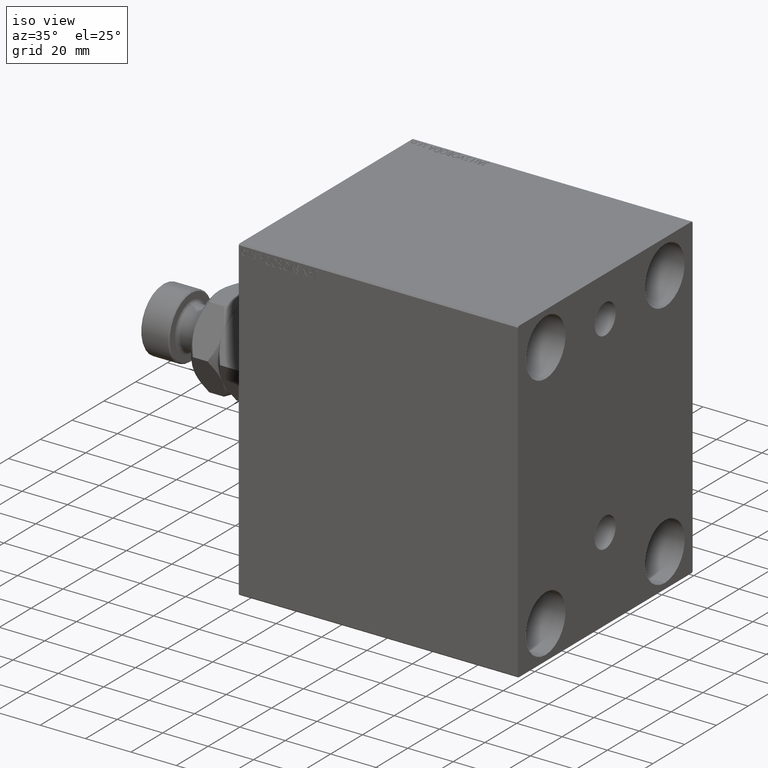
[diagram: clean part render]
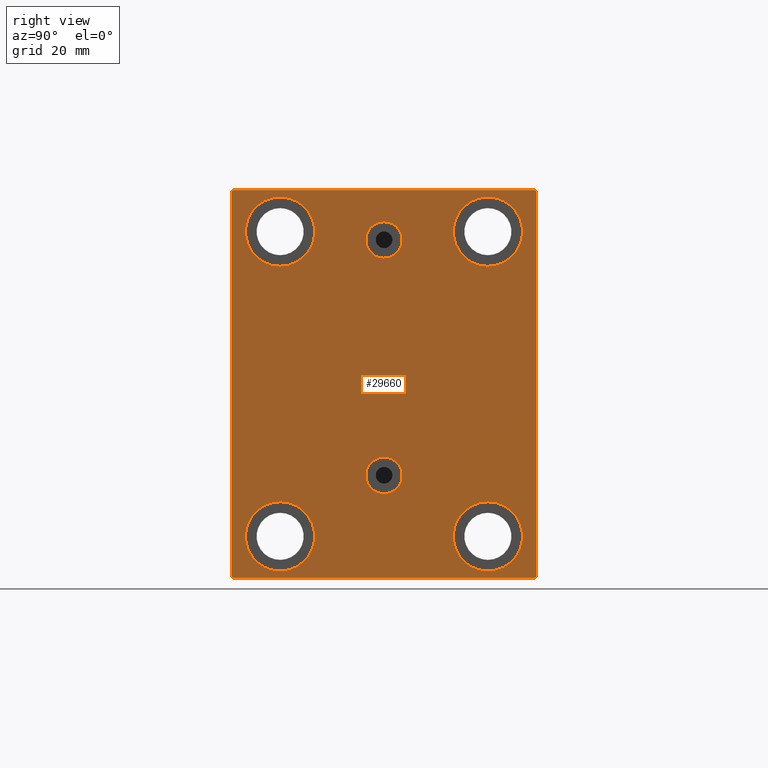
[diagram: tour spotlight — one face highlighted and labeled with its STEP entity id]
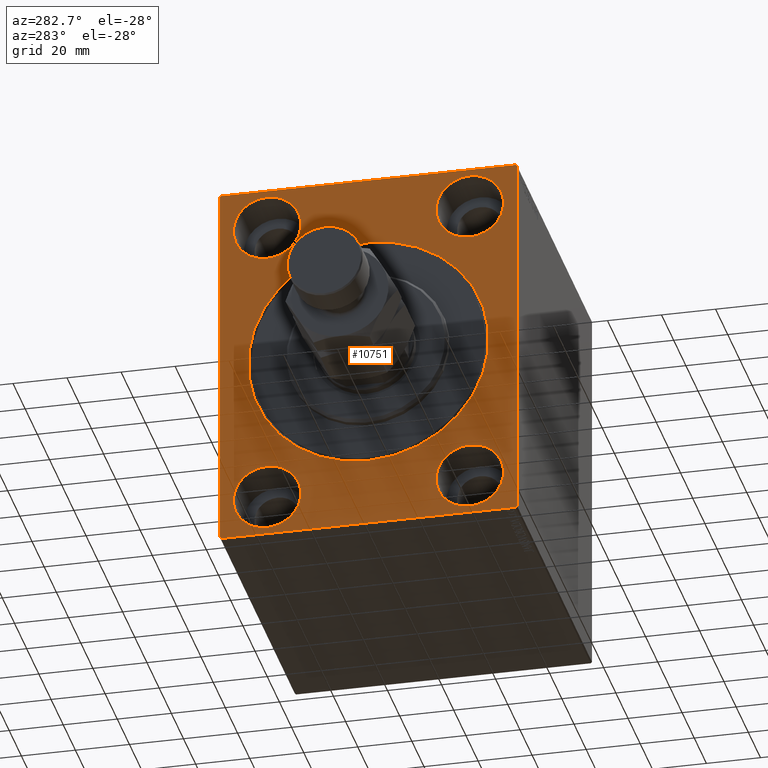
[diagram: tour spotlight — one face highlighted and labeled with its STEP entity id]
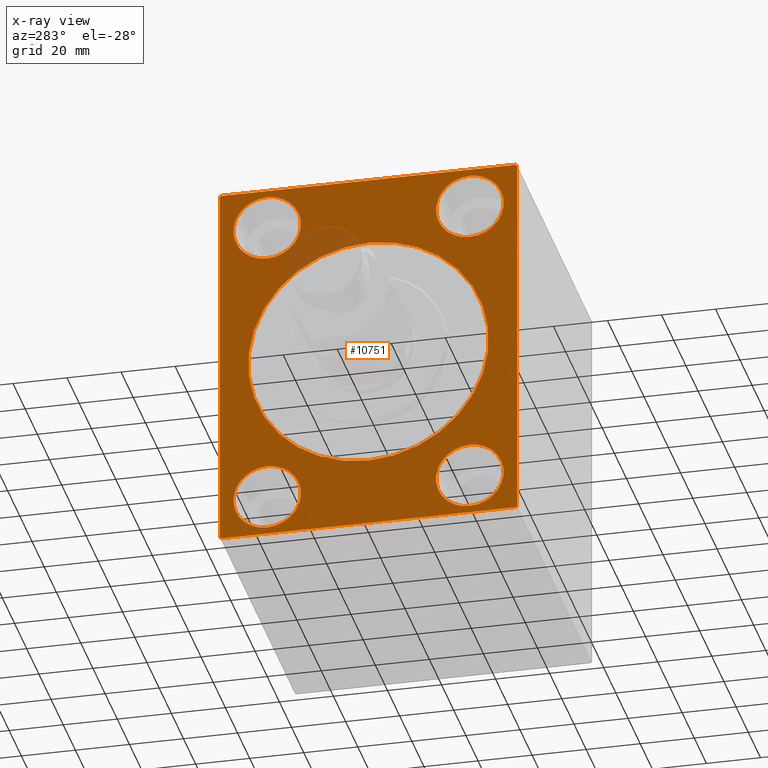
[diagram: x-ray of the same camera — body ghosted, this tour face saturated]
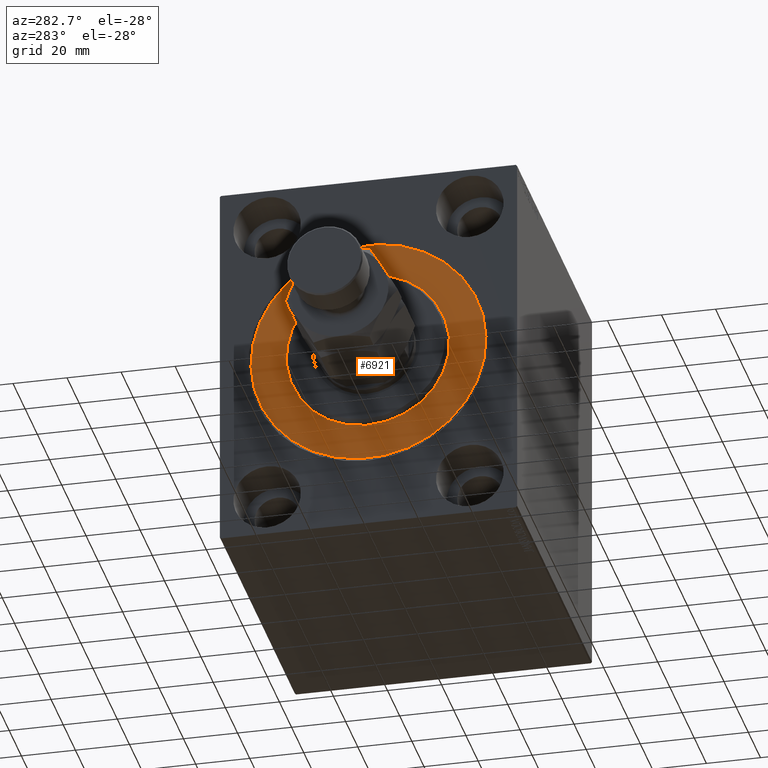
[diagram: tour spotlight — one face highlighted and labeled with its STEP entity id]
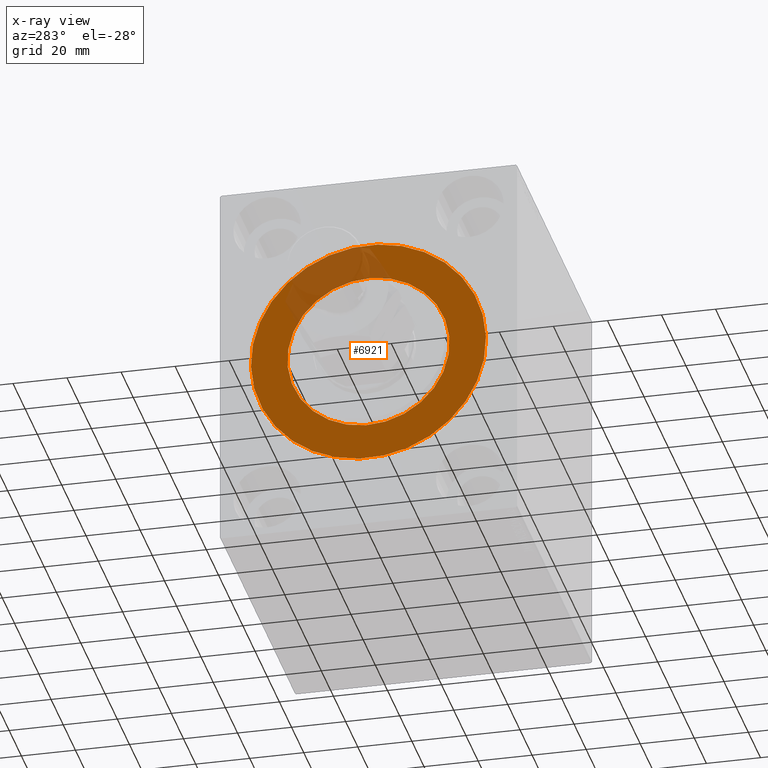
[diagram: x-ray of the same camera — body ghosted, this tour face saturated]
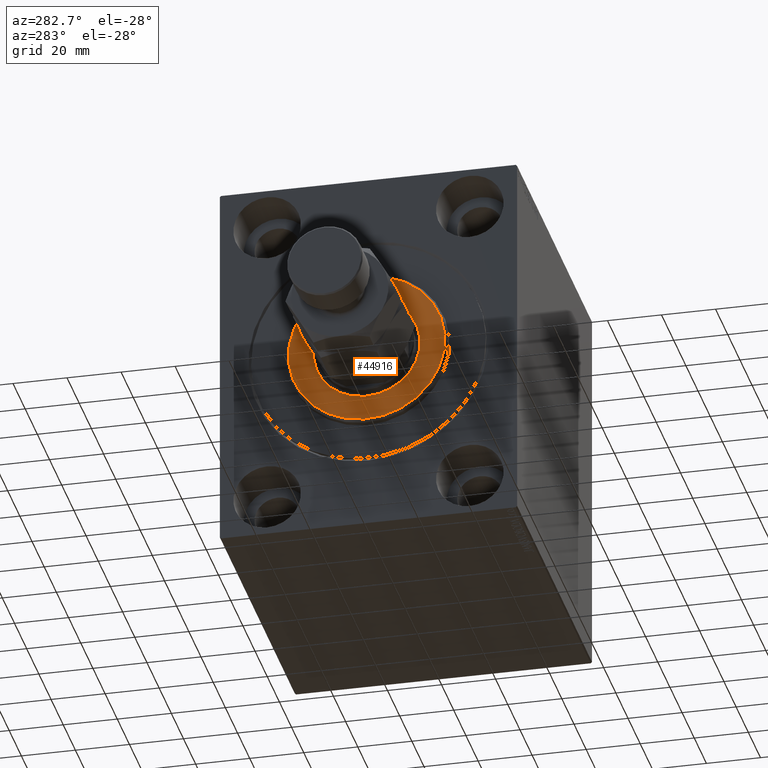
[diagram: tour spotlight — one face highlighted and labeled with its STEP entity id]
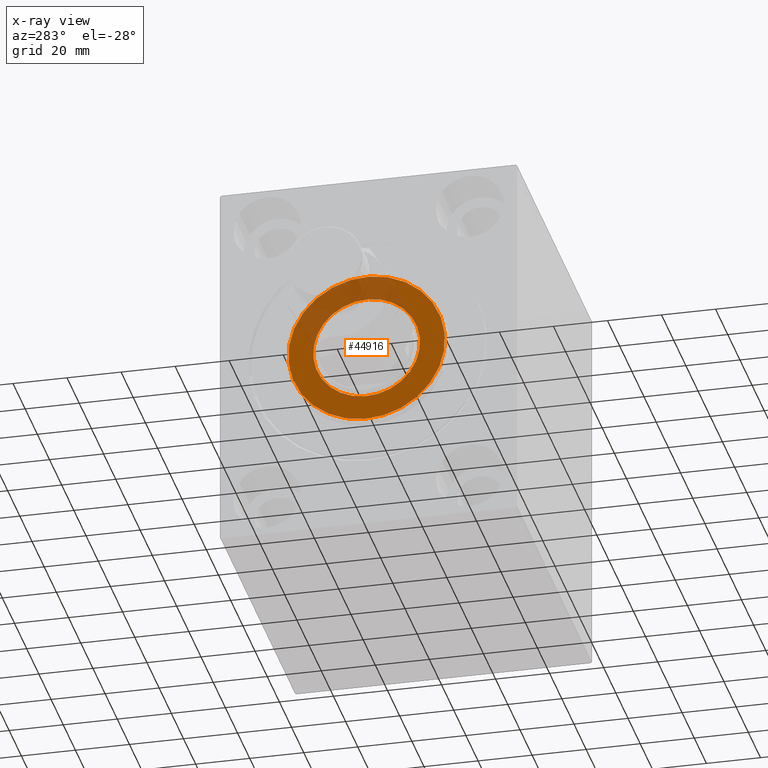
[diagram: x-ray of the same camera — body ghosted, this tour face saturated]
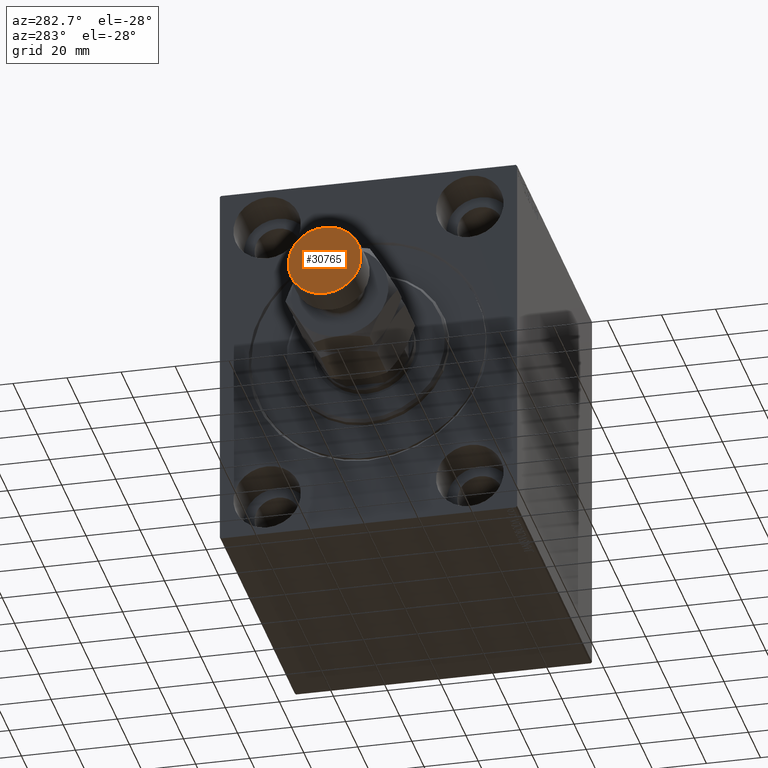
[diagram: tour spotlight — one face highlighted and labeled with its STEP entity id]
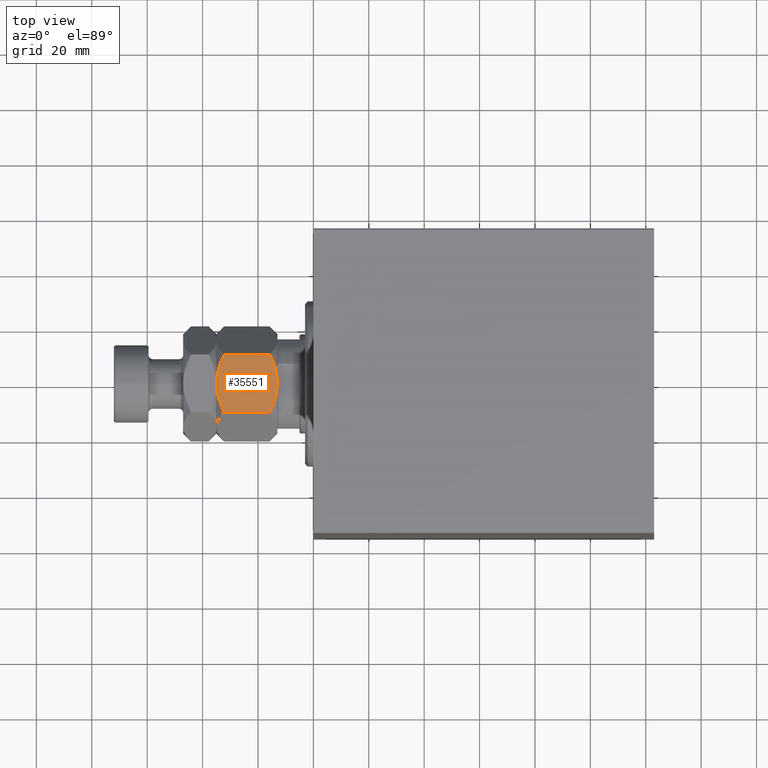
[diagram: tour spotlight — one face highlighted and labeled with its STEP entity id]
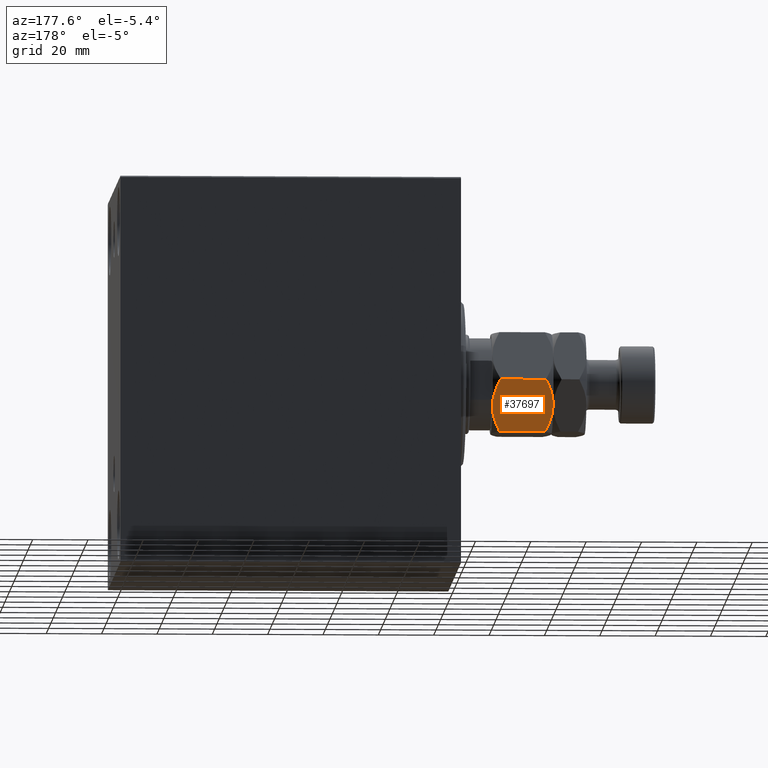
[diagram: tour spotlight — one face highlighted and labeled with its STEP entity id]
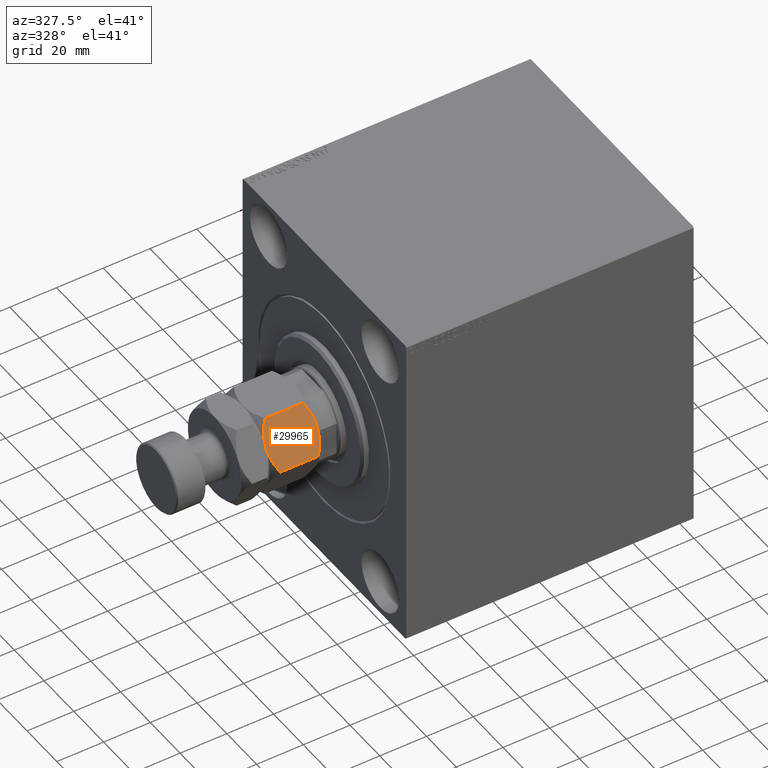
[diagram: tour spotlight — one face highlighted and labeled with its STEP entity id]
A machine part: a face-by-face anatomy tour. The part has 912 B-rep faces; the first image is the clean iso view, then the 8 largest visible faces are spotlighted one at a time (largest first), each with its STEP entity span.

Face 1 — right view, entity #29660. In plain terms, the highlighted planar face has unit normal (1, 0, 0).
Definition (entity closure, byte-faithful):
#60 = CARTESIAN_POINT ( 'NONE',  ( 123.0000000000000000, -55.00000000000000711, 69.99999999999998579 ) ) ;
#62 = EDGE_CURVE ( 'NONE', #7986, #44497, #32749, .T. ) ;
#178 = VERTEX_POINT ( 'NONE', #19693 ) ;
#464 = VECTOR ( 'NONE', #4762, 1000.000000000000000 ) ;
#513 = LINE ( 'NONE', #28346, #25346 ) ;
#610 = CIRCLE ( 'NONE', #25665, 12.49999999999999645 ) ;
#761 = CARTESIAN_POINT ( 'NONE',  ( 123.0000000000000000, -55.00000000000000711, -70.00000000000002842 ) ) ;
#1045 = DIRECTION ( 'NONE',  ( 1.000000000000000000, 0.000000000000000000, -0.000000000000000000 ) ) ;
#1335 = DIRECTION ( 'NONE',  ( 0.000000000000000000, 0.000000000000000000, 1.000000000000000000 ) ) ;
#1392 = DIRECTION ( 'NONE',  ( 0.000000000000000000, 0.000000000000000000, 1.000000000000000000 ) ) ;
#1444 = LINE ( 'NONE', #761, #9974 ) ;
#1931 = VERTEX_POINT ( 'NONE', #6491 ) ;
#2215 = DIRECTION ( 'NONE',  ( 0.000000000000000000, 0.000000000000000000, -1.000000000000000000 ) ) ;
#2568 = CIRCLE ( 'NONE', #28992, 6.580000000000002736 ) ;
#2705 = AXIS2_PLACEMENT_3D ( 'NONE', #3927, #11074, #1392 ) ;
#3094 = CARTESIAN_POINT ( 'NONE',  ( 123.0000000000000000, 0.000000000000000000, 0.000000000000000000 ) ) ;
#3307 = ORIENTED_EDGE ( 'NONE', *, *, #18944, .T. ) ;
#3334 = ORIENTED_EDGE ( 'NONE', *, *, #14056, .T. ) ;
#3860 = DIRECTION ( 'NONE',  ( 0.000000000000000000, 0.000000000000000000, 1.000000000000000000 ) ) ;
#3927 = CARTESIAN_POINT ( 'NONE',  ( 123.0000000000000000, 37.50000000000000711, 55.00000000000000711 ) ) ;
#4181 = CIRCLE ( 'NONE', #36490, 12.49999999999999645 ) ;
#4349 = ORIENTED_EDGE ( 'NONE', *, *, #4659, .T. ) ;
#4659 = EDGE_CURVE ( 'NONE', #36318, #6591, #28628, .T. ) ;
#4739 = DIRECTION ( 'NONE',  ( 1.000000000000000000, 0.000000000000000000, 0.000000000000000000 ) ) ;
#4762 = DIRECTION ( 'NONE',  ( 0.000000000000000000, -1.000000000000000000, -1.261617073437677999E-16 ) ) ;
#4791 = AXIS2_PLACEMENT_3D ( 'NONE', #17774, #42862, #35473 ) ;
#4943 = EDGE_CURVE ( 'NONE', #33725, #20206, #24668, .T. ) ;
#5087 = EDGE_CURVE ( 'NONE', #21343, #31970, #22243, .T. ) ;
#5604 = VECTOR ( 'NONE', #11381, 1000.000000000000000 ) ;
#5714 = DIRECTION ( 'NONE',  ( -0.000000000000000000, -0.7071067811865474617, 0.7071067811865474617 ) ) ;
#5877 = FACE_BOUND ( 'NONE', #35752, .T. ) ;
#6303 = CARTESIAN_POINT ( 'NONE',  ( 123.0000000000000000, 37.50000000000000711, 42.50000000000000711 ) ) ;
#6491 = CARTESIAN_POINT ( 'NONE',  ( 123.0000000000000000, -37.50000000000002132, -67.49999999999998579 ) ) ;
#6575 = EDGE_CURVE ( 'NONE', #1931, #33780, #4181, .T. ) ;
#6591 = VERTEX_POINT ( 'NONE', #20177 ) ;
#6615 = EDGE_CURVE ( 'NONE', #24778, #19445, #32092, .T. ) ;
#6947 = DIRECTION ( 'NONE',  ( -1.000000000000000000, -0.000000000000000000, -0.000000000000000000 ) ) ;
#7095 = DIRECTION ( 'NONE',  ( -1.000000000000000000, -0.000000000000000000, -0.000000000000000000 ) ) ;
#7219 = CARTESIAN_POINT ( 'NONE',  ( 123.0000000000000000, -55.00000000000000711, -69.50000000000007105 ) ) ;
#7549 = EDGE_LOOP ( 'NONE', ( #18394, #22217 ) ) ;
#7700 = CARTESIAN_POINT ( 'NONE',  ( 123.0000000000000000, 55.00000000000002132, -70.00000000000000000 ) ) ;
#7878 = VERTEX_POINT ( 'NONE', #22863 ) ;
#7986 = VERTEX_POINT ( 'NONE', #6303 ) ;
#8992 = ORIENTED_EDGE ( 'NONE', *, *, #23222, .T. ) ;
#9234 = CARTESIAN_POINT ( 'NONE',  ( 123.0000000000000000, -37.50000000000000711, 67.50000000000000000 ) ) ;
#9479 = ORIENTED_EDGE ( 'NONE', *, *, #42597, .T. ) ;
#9974 = VECTOR ( 'NONE', #14793, 1000.000000000000000 ) ;
#10398 = CARTESIAN_POINT ( 'NONE',  ( 123.0000000000000000, -37.50000000000002132, -54.99999999999999289 ) ) ;
#10535 = ORIENTED_EDGE ( 'NONE', *, *, #62, .T. ) ;
#10726 = AXIS2_PLACEMENT_3D ( 'NONE', #35371, #7095, #3860 ) ;
#11074 = DIRECTION ( 'NONE',  ( -1.000000000000000000, -0.000000000000000000, -0.000000000000000000 ) ) ;
#11381 = DIRECTION ( 'NONE',  ( 0.000000000000000000, -1.982541115402065110E-16, 1.000000000000000000 ) ) ;
#11972 = DIRECTION ( 'NONE',  ( -1.000000000000000000, -0.000000000000000000, -0.000000000000000000 ) ) ;
#12200 = CARTESIAN_POINT ( 'NONE',  ( 123.0000000000000000, 37.49999999999997868, -54.99999999999999289 ) ) ;
#12785 = EDGE_CURVE ( 'NONE', #20206, #33725, #21715, .T. ) ;
#12804 = EDGE_CURVE ( 'NONE', #41679, #36318, #513, .T. ) ;
#13280 = DIRECTION ( 'NONE',  ( 0.000000000000000000, 0.000000000000000000, 1.000000000000000000 ) ) ;
#13679 = FACE_BOUND ( 'NONE', #27593, .T. ) ;
#14056 = EDGE_CURVE ( 'NONE', #22460, #41051, #25741, .T. ) ;
#14117 = VERTEX_POINT ( 'NONE', #26422 ) ;
#14453 = AXIS2_PLACEMENT_3D ( 'NONE', #44824, #26843, #13280 ) ;
#14793 = DIRECTION ( 'NONE',  ( 0.000000000000000000, 1.000000000000000000, 2.523234146875355012E-16 ) ) ;
#15176 = CIRCLE ( 'NONE', #19614, 12.49999999999999645 ) ;
#15260 = EDGE_CURVE ( 'NONE', #39892, #7878, #2568, .T. ) ;
#15308 = DIRECTION ( 'NONE',  ( 0.000000000000000000, 0.000000000000000000, 1.000000000000000000 ) ) ;
#15388 = ORIENTED_EDGE ( 'NONE', *, *, #6615, .F. ) ;
#15570 = DIRECTION ( 'NONE',  ( -1.000000000000000000, -0.000000000000000000, -0.000000000000000000 ) ) ;
#15723 = DIRECTION ( 'NONE',  ( -0.000000000000000000, 0.7071067811865771047, -0.7071067811865180408 ) ) ;
#16030 = DIRECTION ( 'NONE',  ( 0.000000000000000000, 0.000000000000000000, 1.000000000000000000 ) ) ;
#16055 = CARTESIAN_POINT ( 'NONE',  ( 123.0000000000000000, -37.50000000000002132, -54.99999999999999289 ) ) ;
#16690 = FACE_BOUND ( 'NONE', #27584, .T. ) ;
#17231 = CARTESIAN_POINT ( 'NONE',  ( 123.0000000000000000, -54.50000000000003553, 69.99999999999998579 ) ) ;
#17313 = ORIENTED_EDGE ( 'NONE', *, *, #4943, .T. ) ;
#17704 = AXIS2_PLACEMENT_3D ( 'NONE', #43201, #4739, #2215 ) ;
#17774 = CARTESIAN_POINT ( 'NONE',  ( 123.0000000000000000, -37.50000000000000711, 55.00000000000000711 ) ) ;
#17985 = ORIENTED_EDGE ( 'NONE', *, *, #12785, .T. ) ;
#18394 = ORIENTED_EDGE ( 'NONE', *, *, #42467, .T. ) ;
#18398 = VERTEX_POINT ( 'NONE', #43956 ) ;
#18944 = EDGE_CURVE ( 'NONE', #178, #41679, #1444, .T. ) ;
#19379 = EDGE_LOOP ( 'NONE', ( #45561, #9479 ) ) ;
#19445 = VERTEX_POINT ( 'NONE', #21125 ) ;
#19484 = DIRECTION ( 'NONE',  ( -1.000000000000000000, -0.000000000000000000, -0.000000000000000000 ) ) ;
#19614 = AXIS2_PLACEMENT_3D ( 'NONE', #12200, #11972, #33583 ) ;
#19693 = CARTESIAN_POINT ( 'NONE',  ( 123.0000000000000000, -54.50000000000000711, -70.00000000000002842 ) ) ;
#20177 = CARTESIAN_POINT ( 'NONE',  ( 123.0000000000000000, 54.99999999999999289, 69.50000000000000000 ) ) ;
#20206 = VERTEX_POINT ( 'NONE', #22316 ) ;
#20342 = CIRCLE ( 'NONE', #24727, 12.49999999999999645 ) ;
#20792 = PLANE ( 'NONE',  #30849 ) ;
#20964 = DIRECTION ( 'NONE',  ( 0.000000000000000000, 0.000000000000000000, 1.000000000000000000 ) ) ;
#21125 = CARTESIAN_POINT ( 'NONE',  ( 123.0000000000000000, 4.847152031025224453E-15, -26.41999999999999815 ) ) ;
#21343 = VERTEX_POINT ( 'NONE', #32463 ) ;
#21715 = CIRCLE ( 'NONE', #4791, 12.49999999999999645 ) ;
#21978 = CARTESIAN_POINT ( 'NONE',  ( 123.0000000000000000, 4.041334437186266200E-15, -33.00000000000000000 ) ) ;
#22217 = ORIENTED_EDGE ( 'NONE', *, *, #30136, .T. ) ;
#22243 = LINE ( 'NONE', #36275, #464 ) ;
#22316 = CARTESIAN_POINT ( 'NONE',  ( 123.0000000000000000, -37.50000000000000711, 42.50000000000000711 ) ) ;
#22460 = VERTEX_POINT ( 'NONE', #30786 ) ;
#22727 = CARTESIAN_POINT ( 'NONE',  ( 123.0000000000000000, 62.24999999999999289, 62.24999999999999289 ) ) ;
#22863 = CARTESIAN_POINT ( 'NONE',  ( 123.0000000000000000, -8.775864102628257178E-15, 45.42000000000000171 ) ) ;
#23181 = LINE ( 'NONE', #22727, #27804 ) ;
#23198 = EDGE_LOOP ( 'NONE', ( #36543, #8992, #3334, #44634, #3307, #33398, #4349, #41561 ) ) ;
#23222 = EDGE_CURVE ( 'NONE', #31970, #22460, #44853, .T. ) ;
#23448 = DIRECTION ( 'NONE',  ( 1.000000000000000000, 0.000000000000000000, 0.000000000000000000 ) ) ;
#24371 = CARTESIAN_POINT ( 'NONE',  ( 123.0000000000000000, -37.50000000000002132, -42.49999999999999289 ) ) ;
#24668 = CIRCLE ( 'NONE', #10726, 12.49999999999999645 ) ;
#24727 = AXIS2_PLACEMENT_3D ( 'NONE', #10398, #41031, #20964 ) ;
#24778 = VERTEX_POINT ( 'NONE', #40502 ) ;
#25049 = CIRCLE ( 'NONE', #17704, 6.580000000000002736 ) ;
#25313 = DIRECTION ( 'NONE',  ( 0.000000000000000000, 0.000000000000000000, 1.000000000000000000 ) ) ;
#25346 = VECTOR ( 'NONE', #29258, 1000.000000000000114 ) ;
#25665 = AXIS2_PLACEMENT_3D ( 'NONE', #28778, #6947, #25313 ) ;
#25688 = CARTESIAN_POINT ( 'NONE',  ( 123.0000000000000000, 55.00000000000002132, -69.50000000000002842 ) ) ;
#25704 = VECTOR ( 'NONE', #15723, 999.9999999999998863 ) ;
#25741 = LINE ( 'NONE', #60, #45258 ) ;
#25896 = EDGE_CURVE ( 'NONE', #6591, #21343, #23181, .T. ) ;
#25996 = EDGE_LOOP ( 'NONE', ( #17985, #17313 ) ) ;
#26422 = CARTESIAN_POINT ( 'NONE',  ( 123.0000000000000000, 37.49999999999997868, -67.49999999999998579 ) ) ;
#26843 = DIRECTION ( 'NONE',  ( 1.000000000000000000, 0.000000000000000000, -0.000000000000000000 ) ) ;
#26890 = CARTESIAN_POINT ( 'NONE',  ( 123.0000000000000000, -8.775864102628257178E-15, 52.00000000000000711 ) ) ;
#27159 = ORIENTED_EDGE ( 'NONE', *, *, #42279, .T. ) ;
#27323 = CARTESIAN_POINT ( 'NONE',  ( 123.0000000000000000, -62.25000000000000711, 62.25000000000000711 ) ) ;
#27584 = EDGE_LOOP ( 'NONE', ( #15388, #39412 ) ) ;
#27593 = EDGE_LOOP ( 'NONE', ( #10535, #27159 ) ) ;
#27804 = VECTOR ( 'NONE', #5714, 1000.000000000000114 ) ;
#28346 = CARTESIAN_POINT ( 'NONE',  ( 123.0000000000000000, 62.25000000000002842, -62.25000000000002842 ) ) ;
#28628 = LINE ( 'NONE', #7700, #5604 ) ;
#28778 = CARTESIAN_POINT ( 'NONE',  ( 123.0000000000000000, 37.49999999999997868, -54.99999999999999289 ) ) ;
#28992 = AXIS2_PLACEMENT_3D ( 'NONE', #26890, #23448, #29901 ) ;
#29258 = DIRECTION ( 'NONE',  ( -0.000000000000000000, 0.7071067811865474617, 0.7071067811865474617 ) ) ;
#29660 = ADVANCED_FACE ( 'NONE', ( #5877, #16690, #37613, #44547, #13679, #41313, #31395 ), #20792, .T. ) ;
#29803 = AXIS2_PLACEMENT_3D ( 'NONE', #30282, #15570, #16030 ) ;
#29901 = DIRECTION ( 'NONE',  ( 0.000000000000000000, 0.000000000000000000, -1.000000000000000000 ) ) ;
#30136 = EDGE_CURVE ( 'NONE', #18398, #14117, #610, .T. ) ;
#30282 = CARTESIAN_POINT ( 'NONE',  ( 123.0000000000000000, 37.50000000000000711, 55.00000000000000711 ) ) ;
#30786 = CARTESIAN_POINT ( 'NONE',  ( 123.0000000000000000, -55.00000000000000711, 69.50000000000001421 ) ) ;
#30849 = AXIS2_PLACEMENT_3D ( 'NONE', #3094, #41540, #37386 ) ;
#31395 = FACE_OUTER_BOUND ( 'NONE', #23198, .T. ) ;
#31521 = EDGE_CURVE ( 'NONE', #19445, #24778, #35191, .T. ) ;
#31644 = CARTESIAN_POINT ( 'NONE',  ( 123.0000000000000000, -7.970046508789298136E-15, 58.58000000000000540 ) ) ;
#31970 = VERTEX_POINT ( 'NONE', #17231 ) ;
#32092 = CIRCLE ( 'NONE', #14453, 6.580000000000002736 ) ;
#32463 = CARTESIAN_POINT ( 'NONE',  ( 123.0000000000000000, 54.49999999999999289, 70.00000000000000000 ) ) ;
#32749 = CIRCLE ( 'NONE', #29803, 12.49999999999999645 ) ;
#33398 = ORIENTED_EDGE ( 'NONE', *, *, #12804, .T. ) ;
#33583 = DIRECTION ( 'NONE',  ( 0.000000000000000000, 0.000000000000000000, 1.000000000000000000 ) ) ;
#33725 = VERTEX_POINT ( 'NONE', #9234 ) ;
#33780 = VERTEX_POINT ( 'NONE', #24371 ) ;
#34582 = DIRECTION ( 'NONE',  ( 0.000000000000000000, 0.000000000000000000, -1.000000000000000000 ) ) ;
#35191 = CIRCLE ( 'NONE', #45507, 6.580000000000002736 ) ;
#35371 = CARTESIAN_POINT ( 'NONE',  ( 123.0000000000000000, -37.50000000000000711, 55.00000000000000711 ) ) ;
#35473 = DIRECTION ( 'NONE',  ( 0.000000000000000000, 0.000000000000000000, 1.000000000000000000 ) ) ;
#35630 = ORIENTED_EDGE ( 'NONE', *, *, #15260, .F. ) ;
#35752 = EDGE_LOOP ( 'NONE', ( #44108, #35630 ) ) ;
#36275 = CARTESIAN_POINT ( 'NONE',  ( 123.0000000000000000, 54.99999999999999289, 70.00000000000000000 ) ) ;
#36318 = VERTEX_POINT ( 'NONE', #25688 ) ;
#36490 = AXIS2_PLACEMENT_3D ( 'NONE', #16055, #19484, #1335 ) ;
#36543 = ORIENTED_EDGE ( 'NONE', *, *, #5087, .T. ) ;
#36771 = CARTESIAN_POINT ( 'NONE',  ( 123.0000000000000000, 37.50000000000000711, 67.50000000000000000 ) ) ;
#37386 = DIRECTION ( 'NONE',  ( 0.000000000000000000, 0.000000000000000000, -1.000000000000000000 ) ) ;
#37613 = FACE_BOUND ( 'NONE', #7549, .T. ) ;
#37974 = CIRCLE ( 'NONE', #2705, 12.49999999999999645 ) ;
#39412 = ORIENTED_EDGE ( 'NONE', *, *, #31521, .F. ) ;
#39892 = VERTEX_POINT ( 'NONE', #31644 ) ;
#40502 = CARTESIAN_POINT ( 'NONE',  ( 123.0000000000000000, 4.041334437186266200E-15, -39.58000000000000540 ) ) ;
#40802 = LINE ( 'NONE', #43586, #25704 ) ;
#41031 = DIRECTION ( 'NONE',  ( -1.000000000000000000, -0.000000000000000000, -0.000000000000000000 ) ) ;
#41051 = VERTEX_POINT ( 'NONE', #7219 ) ;
#41313 = FACE_BOUND ( 'NONE', #19379, .T. ) ;
#41389 = DIRECTION ( 'NONE',  ( 0.000000000000000000, -0.7071067811865474617, -0.7071067811865474617 ) ) ;
#41540 = DIRECTION ( 'NONE',  ( 1.000000000000000000, 0.000000000000000000, 0.000000000000000000 ) ) ;
#41561 = ORIENTED_EDGE ( 'NONE', *, *, #25896, .T. ) ;
#41679 = VERTEX_POINT ( 'NONE', #42494 ) ;
#41734 = VECTOR ( 'NONE', #41389, 1000.000000000000114 ) ;
#42279 = EDGE_CURVE ( 'NONE', #44497, #7986, #37974, .T. ) ;
#42467 = EDGE_CURVE ( 'NONE', #14117, #18398, #15176, .T. ) ;
#42494 = CARTESIAN_POINT ( 'NONE',  ( 123.0000000000000000, 54.50000000000004974, -70.00000000000000000 ) ) ;
#42597 = EDGE_CURVE ( 'NONE', #33780, #1931, #20342, .T. ) ;
#42862 = DIRECTION ( 'NONE',  ( -1.000000000000000000, -0.000000000000000000, -0.000000000000000000 ) ) ;
#43201 = CARTESIAN_POINT ( 'NONE',  ( 123.0000000000000000, -8.775864102628257178E-15, 52.00000000000000711 ) ) ;
#43379 = EDGE_CURVE ( 'NONE', #41051, #178, #40802, .T. ) ;
#43586 = CARTESIAN_POINT ( 'NONE',  ( 123.0000000000000000, -62.24999999999776890, -62.25000000000295586 ) ) ;
#43956 = CARTESIAN_POINT ( 'NONE',  ( 123.0000000000000000, 37.49999999999997868, -42.49999999999999289 ) ) ;
#44108 = ORIENTED_EDGE ( 'NONE', *, *, #44958, .F. ) ;
#44497 = VERTEX_POINT ( 'NONE', #36771 ) ;
#44547 = FACE_BOUND ( 'NONE', #25996, .T. ) ;
#44634 = ORIENTED_EDGE ( 'NONE', *, *, #43379, .T. ) ;
#44824 = CARTESIAN_POINT ( 'NONE',  ( 123.0000000000000000, 4.041334437186266200E-15, -33.00000000000000000 ) ) ;
#44853 = LINE ( 'NONE', #27323, #41734 ) ;
#44958 = EDGE_CURVE ( 'NONE', #7878, #39892, #25049, .T. ) ;
#45258 = VECTOR ( 'NONE', #34582, 1000.000000000000000 ) ;
#45507 = AXIS2_PLACEMENT_3D ( 'NONE', #21978, #1045, #15308 ) ;
#45561 = ORIENTED_EDGE ( 'NONE', *, *, #6575, .T. ) ;

Face 2 — auxiliary view, entity #10751. An x-ray twin of the same camera follows (body ghosted, this face saturated) — the face is partly hidden behind the body. In plain terms, the highlighted planar face has unit normal (1, 0, 0).
Definition (entity closure, byte-faithful):
#15 = CARTESIAN_POINT ( 'NONE',  ( 0.000000000000000000, -54.50000000000000711, -70.00000000000002842 ) ) ;
#51 = DIRECTION ( 'NONE',  ( 0.000000000000000000, 0.000000000000000000, 1.000000000000000000 ) ) ;
#153 = ORIENTED_EDGE ( 'NONE', *, *, #17766, .T. ) ;
#172 = CARTESIAN_POINT ( 'NONE',  ( 0.000000000000000000, 37.50000000000000711, 55.00000000000000711 ) ) ;
#499 = EDGE_LOOP ( 'NONE', ( #40518, #22556 ) ) ;
#611 = EDGE_LOOP ( 'NONE', ( #43418, #13306 ) ) ;
#704 = CARTESIAN_POINT ( 'NONE',  ( 0.000000000000000000, 54.49999999999999289, 70.00000000000000000 ) ) ;
#1417 = DIRECTION ( 'NONE',  ( -1.000000000000000000, 0.000000000000000000, 0.000000000000000000 ) ) ;
#1877 = FACE_BOUND ( 'NONE', #38135, .T. ) ;
#2385 = DIRECTION ( 'NONE',  ( 0.000000000000000000, 0.000000000000000000, 1.000000000000000000 ) ) ;
#2402 = CARTESIAN_POINT ( 'NONE',  ( 0.000000000000000000, 37.49999999999997868, -42.49999999999999289 ) ) ;
#2530 = CARTESIAN_POINT ( 'NONE',  ( 0.000000000000000000, 54.50000000000004974, -70.00000000000000000 ) ) ;
#2733 = AXIS2_PLACEMENT_3D ( 'NONE', #36605, #1417, #11997 ) ;
#3412 = AXIS2_PLACEMENT_3D ( 'NONE', #44469, #12924, #11513 ) ;
#3739 = CARTESIAN_POINT ( 'NONE',  ( 0.000000000000000000, -37.50000000000000711, 55.00000000000000711 ) ) ;
#4728 = CIRCLE ( 'NONE', #10627, 12.49999999999999645 ) ;
#5328 = FACE_BOUND ( 'NONE', #499, .T. ) ;
#5377 = EDGE_LOOP ( 'NONE', ( #31161, #25625, #43612, #16124, #31934, #23863, #31943, #153 ) ) ;
#5444 = DIRECTION ( 'NONE',  ( 1.000000000000000000, 0.000000000000000000, 0.000000000000000000 ) ) ;
#5457 = CARTESIAN_POINT ( 'NONE',  ( 0.000000000000000000, 55.00000000000002132, -70.00000000000000000 ) ) ;
#5504 = EDGE_CURVE ( 'NONE', #35277, #27494, #43127, .T. ) ;
#6405 = CARTESIAN_POINT ( 'NONE',  ( 0.000000000000000000, -37.50000000000002132, -67.49999999999998579 ) ) ;
#6552 = EDGE_CURVE ( 'NONE', #39874, #17916, #29615, .T. ) ;
#6605 = CIRCLE ( 'NONE', #45536, 44.49999999999998579 ) ;
#6974 = CARTESIAN_POINT ( 'NONE',  ( 0.000000000000000000, 54.99999999999999289, 69.50000000000000000 ) ) ;
#7041 = CIRCLE ( 'NONE', #31269, 12.49999999999999645 ) ;
#7092 = DIRECTION ( 'NONE',  ( 0.000000000000000000, 0.000000000000000000, 1.000000000000000000 ) ) ;
#7188 = EDGE_CURVE ( 'NONE', #19232, #25698, #22061, .T. ) ;
#7703 = EDGE_LOOP ( 'NONE', ( #39881, #13664 ) ) ;
#7731 = AXIS2_PLACEMENT_3D ( 'NONE', #172, #39287, #7092 ) ;
#8027 = VERTEX_POINT ( 'NONE', #6974 ) ;
#8431 = EDGE_LOOP ( 'NONE', ( #11360, #19581 ) ) ;
#8539 = DIRECTION ( 'NONE',  ( 0.000000000000000000, 0.000000000000000000, 1.000000000000000000 ) ) ;
#8793 = FACE_BOUND ( 'NONE', #611, .T. ) ;
#8830 = CARTESIAN_POINT ( 'NONE',  ( 0.000000000000000000, 55.00000000000002132, -69.50000000000002842 ) ) ;
#8928 = CIRCLE ( 'NONE', #34625, 12.49999999999999645 ) ;
#9206 = CARTESIAN_POINT ( 'NONE',  ( 0.000000000000000000, 5.449678256205719615E-15, -44.49999999999998579 ) ) ;
#9241 = CARTESIAN_POINT ( 'NONE',  ( 0.000000000000000000, 37.49999999999997868, -67.49999999999998579 ) ) ;
#9822 = CARTESIAN_POINT ( 'NONE',  ( 0.000000000000000000, -55.00000000000000711, 69.50000000000001421 ) ) ;
#10142 = DIRECTION ( 'NONE',  ( 0.000000000000000000, 0.000000000000000000, -1.000000000000000000 ) ) ;
#10475 = EDGE_CURVE ( 'NONE', #32410, #28961, #4728, .T. ) ;
#10627 = AXIS2_PLACEMENT_3D ( 'NONE', #45186, #23768, #2385 ) ;
#10751 = ADVANCED_FACE ( 'NONE', ( #40076, #5328, #1877, #22582, #8793, #22806 ), #39623, .F. ) ;
#11360 = ORIENTED_EDGE ( 'NONE', *, *, #33866, .T. ) ;
#11513 = DIRECTION ( 'NONE',  ( 0.000000000000000000, 0.000000000000000000, 1.000000000000000000 ) ) ;
#11536 = VECTOR ( 'NONE', #10142, 1000.000000000000000 ) ;
#11993 = DIRECTION ( 'NONE',  ( 0.000000000000000000, 0.000000000000000000, -1.000000000000000000 ) ) ;
#11997 = DIRECTION ( 'NONE',  ( 0.000000000000000000, 0.000000000000000000, 1.000000000000000000 ) ) ;
#12108 = CARTESIAN_POINT ( 'NONE',  ( 0.000000000000000000, -55.00000000000000711, 69.50000000000001421 ) ) ;
#12191 = EDGE_CURVE ( 'NONE', #20906, #20295, #31955, .T. ) ;
#12475 = LINE ( 'NONE', #15473, #35433 ) ;
#12924 = DIRECTION ( 'NONE',  ( -1.000000000000000000, 0.000000000000000000, 0.000000000000000000 ) ) ;
#13070 = AXIS2_PLACEMENT_3D ( 'NONE', #28260, #23906, #37944 ) ;
#13209 = DIRECTION ( 'NONE',  ( -1.000000000000000000, 0.000000000000000000, 0.000000000000000000 ) ) ;
#13306 = ORIENTED_EDGE ( 'NONE', *, *, #5504, .F. ) ;
#13664 = ORIENTED_EDGE ( 'NONE', *, *, #12191, .F. ) ;
#13801 = CARTESIAN_POINT ( 'NONE',  ( 0.000000000000000000, -55.00000000000000711, 69.99999999999998579 ) ) ;
#14031 = DIRECTION ( 'NONE',  ( 0.000000000000000000, 1.000000000000000000, 2.523234146875355012E-16 ) ) ;
#14376 = VERTEX_POINT ( 'NONE', #9822 ) ;
#14488 = CARTESIAN_POINT ( 'NONE',  ( 0.000000000000000000, -55.00000000000000711, -70.00000000000002842 ) ) ;
#14630 = EDGE_CURVE ( 'NONE', #27494, #35277, #7041, .T. ) ;
#14736 = DIRECTION ( 'NONE',  ( -0.000000000000000000, 0.7071067811865474617, -0.7071067811865474617 ) ) ;
#14958 = CARTESIAN_POINT ( 'NONE',  ( 0.000000000000000000, 37.50000000000000711, 67.50000000000000000 ) ) ;
#15218 = VECTOR ( 'NONE', #14031, 1000.000000000000000 ) ;
#15335 = DIRECTION ( 'NONE',  ( -0.000000000000000000, 0.7071067811865474617, 0.7071067811865474617 ) ) ;
#15435 = CARTESIAN_POINT ( 'NONE',  ( 0.000000000000000000, 37.49999999999997868, -54.99999999999999289 ) ) ;
#15473 = CARTESIAN_POINT ( 'NONE',  ( 0.000000000000000000, 55.00000000000002132, -69.50000000000002842 ) ) ;
#15918 = DIRECTION ( 'NONE',  ( 1.000000000000000000, 0.000000000000000000, 0.000000000000000000 ) ) ;
#15948 = CARTESIAN_POINT ( 'NONE',  ( 0.000000000000000000, -37.50000000000000711, 67.50000000000000000 ) ) ;
#16069 = LINE ( 'NONE', #23417, #29064 ) ;
#16124 = ORIENTED_EDGE ( 'NONE', *, *, #27676, .T. ) ;
#16651 = CARTESIAN_POINT ( 'NONE',  ( 0.000000000000000000, 0.000000000000000000, 44.49999999999998579 ) ) ;
#17766 = EDGE_CURVE ( 'NONE', #19232, #45395, #16069, .T. ) ;
#17916 = VERTEX_POINT ( 'NONE', #42202 ) ;
#18198 = LINE ( 'NONE', #704, #35161 ) ;
#19232 = VERTEX_POINT ( 'NONE', #15 ) ;
#19389 = VERTEX_POINT ( 'NONE', #9206 ) ;
#19581 = ORIENTED_EDGE ( 'NONE', *, *, #39632, .T. ) ;
#19650 = DIRECTION ( 'NONE',  ( 0.000000000000000000, 0.000000000000000000, 1.000000000000000000 ) ) ;
#19929 = CARTESIAN_POINT ( 'NONE',  ( 0.000000000000000000, 0.000000000000000000, 0.000000000000000000 ) ) ;
#20170 = LINE ( 'NONE', #5457, #36457 ) ;
#20295 = VERTEX_POINT ( 'NONE', #14958 ) ;
#20906 = VERTEX_POINT ( 'NONE', #45005 ) ;
#21056 = CARTESIAN_POINT ( 'NONE',  ( 0.000000000000000000, 54.49999999999999289, 70.00000000000000000 ) ) ;
#22061 = LINE ( 'NONE', #14488, #15218 ) ;
#22124 = CARTESIAN_POINT ( 'NONE',  ( 0.000000000000000000, 0.000000000000000000, 0.000000000000000000 ) ) ;
#22132 = EDGE_CURVE ( 'NONE', #45546, #40989, #36517, .T. ) ;
#22237 = EDGE_CURVE ( 'NONE', #14376, #45395, #34958, .T. ) ;
#22252 = CARTESIAN_POINT ( 'NONE',  ( 0.000000000000000000, 54.99999999999999289, 70.00000000000000000 ) ) ;
#22556 = ORIENTED_EDGE ( 'NONE', *, *, #22132, .F. ) ;
#22574 = EDGE_CURVE ( 'NONE', #14376, #17916, #43203, .T. ) ;
#22582 = FACE_BOUND ( 'NONE', #7703, .T. ) ;
#22806 = FACE_OUTER_BOUND ( 'NONE', #5377, .T. ) ;
#23014 = DIRECTION ( 'NONE',  ( 1.000000000000000000, 0.000000000000000000, 0.000000000000000000 ) ) ;
#23162 = DIRECTION ( 'NONE',  ( 0.000000000000000000, -1.982541115402065110E-16, 1.000000000000000000 ) ) ;
#23378 = DIRECTION ( 'NONE',  ( 0.000000000000000000, 0.000000000000000000, -1.000000000000000000 ) ) ;
#23417 = CARTESIAN_POINT ( 'NONE',  ( 0.000000000000000000, -54.50000000000000711, -70.00000000000002842 ) ) ;
#23558 = CARTESIAN_POINT ( 'NONE',  ( 0.000000000000000000, -37.50000000000002132, -54.99999999999999289 ) ) ;
#23768 = DIRECTION ( 'NONE',  ( -1.000000000000000000, 0.000000000000000000, 0.000000000000000000 ) ) ;
#23863 = ORIENTED_EDGE ( 'NONE', *, *, #38378, .T. ) ;
#23906 = DIRECTION ( 'NONE',  ( -1.000000000000000000, 0.000000000000000000, 0.000000000000000000 ) ) ;
#24883 = EDGE_CURVE ( 'NONE', #20295, #20906, #41015, .T. ) ;
#25502 = ORIENTED_EDGE ( 'NONE', *, *, #34630, .F. ) ;
#25591 = EDGE_CURVE ( 'NONE', #40989, #45546, #44737, .T. ) ;
#25625 = ORIENTED_EDGE ( 'NONE', *, *, #22574, .T. ) ;
#25698 = VERTEX_POINT ( 'NONE', #2530 ) ;
#25822 = CARTESIAN_POINT ( 'NONE',  ( 0.000000000000000000, -37.50000000000002132, -42.49999999999999289 ) ) ;
#26492 = DIRECTION ( 'NONE',  ( 0.000000000000000000, -0.7071067811865474617, -0.7071067811865474617 ) ) ;
#27494 = VERTEX_POINT ( 'NONE', #25822 ) ;
#27676 = EDGE_CURVE ( 'NONE', #39874, #8027, #18198, .T. ) ;
#28260 = CARTESIAN_POINT ( 'NONE',  ( 0.000000000000000000, 37.50000000000000711, 55.00000000000000711 ) ) ;
#28961 = VERTEX_POINT ( 'NONE', #15948 ) ;
#29064 = VECTOR ( 'NONE', #37454, 999.9999999999998863 ) ;
#29615 = LINE ( 'NONE', #22252, #29894 ) ;
#29879 = VERTEX_POINT ( 'NONE', #8830 ) ;
#29894 = VECTOR ( 'NONE', #40446, 1000.000000000000000 ) ;
#29944 = DIRECTION ( 'NONE',  ( 0.000000000000000000, 0.000000000000000000, -1.000000000000000000 ) ) ;
#31161 = ORIENTED_EDGE ( 'NONE', *, *, #22237, .F. ) ;
#31269 = AXIS2_PLACEMENT_3D ( 'NONE', #23558, #13209, #19650 ) ;
#31786 = ORIENTED_EDGE ( 'NONE', *, *, #10475, .F. ) ;
#31934 = ORIENTED_EDGE ( 'NONE', *, *, #41538, .F. ) ;
#31943 = ORIENTED_EDGE ( 'NONE', *, *, #7188, .F. ) ;
#31955 = CIRCLE ( 'NONE', #7731, 12.49999999999999645 ) ;
#32410 = VERTEX_POINT ( 'NONE', #44316 ) ;
#33137 = DIRECTION ( 'NONE',  ( -1.000000000000000000, 0.000000000000000000, 0.000000000000000000 ) ) ;
#33866 = EDGE_CURVE ( 'NONE', #34544, #19389, #6605, .T. ) ;
#34023 = AXIS2_PLACEMENT_3D ( 'NONE', #19929, #5444, #23378 ) ;
#34544 = VERTEX_POINT ( 'NONE', #16651 ) ;
#34625 = AXIS2_PLACEMENT_3D ( 'NONE', #3739, #34794, #51 ) ;
#34630 = EDGE_CURVE ( 'NONE', #28961, #32410, #8928, .T. ) ;
#34794 = DIRECTION ( 'NONE',  ( -1.000000000000000000, 0.000000000000000000, 0.000000000000000000 ) ) ;
#34958 = LINE ( 'NONE', #13801, #11536 ) ;
#35044 = VECTOR ( 'NONE', #15335, 1000.000000000000114 ) ;
#35161 = VECTOR ( 'NONE', #14736, 1000.000000000000114 ) ;
#35277 = VERTEX_POINT ( 'NONE', #6405 ) ;
#35433 = VECTOR ( 'NONE', #26492, 1000.000000000000114 ) ;
#36150 = CARTESIAN_POINT ( 'NONE',  ( 0.000000000000000000, -55.00000000000000711, -69.50000000000007105 ) ) ;
#36457 = VECTOR ( 'NONE', #23162, 1000.000000000000000 ) ;
#36517 = CIRCLE ( 'NONE', #2733, 12.49999999999999645 ) ;
#36605 = CARTESIAN_POINT ( 'NONE',  ( 0.000000000000000000, 37.49999999999997868, -54.99999999999999289 ) ) ;
#37454 = DIRECTION ( 'NONE',  ( -0.000000000000000000, -0.7071067811865771047, 0.7071067811865180408 ) ) ;
#37944 = DIRECTION ( 'NONE',  ( 0.000000000000000000, 0.000000000000000000, 1.000000000000000000 ) ) ;
#37959 = CARTESIAN_POINT ( 'NONE',  ( 0.000000000000000000, 0.000000000000000000, 0.000000000000000000 ) ) ;
#38135 = EDGE_LOOP ( 'NONE', ( #25502, #31786 ) ) ;
#38378 = EDGE_CURVE ( 'NONE', #29879, #25698, #12475, .T. ) ;
#39164 = CIRCLE ( 'NONE', #34023, 44.49999999999998579 ) ;
#39287 = DIRECTION ( 'NONE',  ( -1.000000000000000000, 0.000000000000000000, 0.000000000000000000 ) ) ;
#39623 = PLANE ( 'NONE',  #42231 ) ;
#39632 = EDGE_CURVE ( 'NONE', #19389, #34544, #39164, .T. ) ;
#39874 = VERTEX_POINT ( 'NONE', #21056 ) ;
#39881 = ORIENTED_EDGE ( 'NONE', *, *, #24883, .F. ) ;
#40076 = FACE_BOUND ( 'NONE', #8431, .T. ) ;
#40446 = DIRECTION ( 'NONE',  ( 0.000000000000000000, -1.000000000000000000, -1.261617073437677999E-16 ) ) ;
#40518 = ORIENTED_EDGE ( 'NONE', *, *, #25591, .F. ) ;
#40989 = VERTEX_POINT ( 'NONE', #2402 ) ;
#41015 = CIRCLE ( 'NONE', #13070, 12.49999999999999645 ) ;
#41538 = EDGE_CURVE ( 'NONE', #29879, #8027, #20170, .T. ) ;
#42202 = CARTESIAN_POINT ( 'NONE',  ( 0.000000000000000000, -54.50000000000003553, 69.99999999999998579 ) ) ;
#42231 = AXIS2_PLACEMENT_3D ( 'NONE', #22124, #15918, #29944 ) ;
#42519 = AXIS2_PLACEMENT_3D ( 'NONE', #15435, #33137, #8539 ) ;
#43127 = CIRCLE ( 'NONE', #3412, 12.49999999999999645 ) ;
#43203 = LINE ( 'NONE', #12108, #35044 ) ;
#43418 = ORIENTED_EDGE ( 'NONE', *, *, #14630, .F. ) ;
#43612 = ORIENTED_EDGE ( 'NONE', *, *, #6552, .F. ) ;
#44316 = CARTESIAN_POINT ( 'NONE',  ( 0.000000000000000000, -37.50000000000000711, 42.50000000000000711 ) ) ;
#44469 = CARTESIAN_POINT ( 'NONE',  ( 0.000000000000000000, -37.50000000000002132, -54.99999999999999289 ) ) ;
#44737 = CIRCLE ( 'NONE', #42519, 12.49999999999999645 ) ;
#45005 = CARTESIAN_POINT ( 'NONE',  ( 0.000000000000000000, 37.50000000000000711, 42.50000000000000711 ) ) ;
#45186 = CARTESIAN_POINT ( 'NONE',  ( 0.000000000000000000, -37.50000000000000711, 55.00000000000000711 ) ) ;
#45395 = VERTEX_POINT ( 'NONE', #36150 ) ;
#45536 = AXIS2_PLACEMENT_3D ( 'NONE', #37959, #23014, #11993 ) ;
#45546 = VERTEX_POINT ( 'NONE', #9241 ) ;

Face 3 — auxiliary view, entity #6921. An x-ray twin of the same camera follows (body ghosted, this face saturated) — the face is partly hidden behind the body. In plain terms, the highlighted planar face has unit normal (1, 0, -0).
Definition (entity closure, byte-faithful):
#1653 = AXIS2_PLACEMENT_3D ( 'NONE', #21513, #39233, #4256 ) ;
#2129 = CARTESIAN_POINT ( 'NONE',  ( 0.000000000000000000, 0.000000000000000000, 30.00000000000000000 ) ) ;
#4256 = DIRECTION ( 'NONE',  ( 0.000000000000000000, 0.000000000000000000, -1.000000000000000000 ) ) ;
#4537 = VERTEX_POINT ( 'NONE', #21043 ) ;
#5642 = CARTESIAN_POINT ( 'NONE',  ( 0.000000000000000000, 0.000000000000000000, 0.000000000000000000 ) ) ;
#5665 = AXIS2_PLACEMENT_3D ( 'NONE', #27930, #7003, #45220 ) ;
#6904 = ORIENTED_EDGE ( 'NONE', *, *, #31619, .F. ) ;
#6921 = ADVANCED_FACE ( 'NONE', ( #35286, #20791 ), #10241, .F. ) ;
#7003 = DIRECTION ( 'NONE',  ( -1.000000000000000000, 0.000000000000000000, 0.000000000000000000 ) ) ;
#7882 = VERTEX_POINT ( 'NONE', #39457 ) ;
#8051 = CIRCLE ( 'NONE', #28606, 43.50000000000000000 ) ;
#9121 = ORIENTED_EDGE ( 'NONE', *, *, #28371, .F. ) ;
#9515 = AXIS2_PLACEMENT_3D ( 'NONE', #5642, #40391, #23110 ) ;
#10241 = PLANE ( 'NONE',  #5665 ) ;
#10500 = CIRCLE ( 'NONE', #1653, 30.00000000000000000 ) ;
#12493 = AXIS2_PLACEMENT_3D ( 'NONE', #28390, #42681, #18940 ) ;
#16629 = CARTESIAN_POINT ( 'NONE',  ( 0.000000000000000000, 0.000000000000000000, 0.000000000000000000 ) ) ;
#16631 = ORIENTED_EDGE ( 'NONE', *, *, #43228, .F. ) ;
#18940 = DIRECTION ( 'NONE',  ( 0.000000000000000000, 0.000000000000000000, 1.000000000000000000 ) ) ;
#19102 = VERTEX_POINT ( 'NONE', #2129 ) ;
#20791 = FACE_OUTER_BOUND ( 'NONE', #33434, .T. ) ;
#21043 = CARTESIAN_POINT ( 'NONE',  ( 0.000000000000000000, 5.327213576290986044E-15, 43.50000000000000000 ) ) ;
#21513 = CARTESIAN_POINT ( 'NONE',  ( 0.000000000000000000, 0.000000000000000000, 0.000000000000000000 ) ) ;
#23110 = DIRECTION ( 'NONE',  ( 0.000000000000000000, 0.000000000000000000, -1.000000000000000000 ) ) ;
#24877 = CARTESIAN_POINT ( 'NONE',  ( 0.000000000000000000, 3.673940397442059178E-15, -30.00000000000000000 ) ) ;
#27089 = ORIENTED_EDGE ( 'NONE', *, *, #37875, .F. ) ;
#27413 = DIRECTION ( 'NONE',  ( -1.000000000000000000, 0.000000000000000000, 0.000000000000000000 ) ) ;
#27640 = DIRECTION ( 'NONE',  ( 0.000000000000000000, 0.000000000000000000, 1.000000000000000000 ) ) ;
#27930 = CARTESIAN_POINT ( 'NONE',  ( 0.000000000000000000, 0.000000000000000000, 0.000000000000000000 ) ) ;
#28371 = EDGE_CURVE ( 'NONE', #4537, #7882, #8051, .T. ) ;
#28390 = CARTESIAN_POINT ( 'NONE',  ( 0.000000000000000000, 0.000000000000000000, 0.000000000000000000 ) ) ;
#28606 = AXIS2_PLACEMENT_3D ( 'NONE', #16629, #27413, #27640 ) ;
#31619 = EDGE_CURVE ( 'NONE', #19102, #32818, #38154, .T. ) ;
#32818 = VERTEX_POINT ( 'NONE', #24877 ) ;
#33434 = EDGE_LOOP ( 'NONE', ( #16631, #9121 ) ) ;
#33794 = CIRCLE ( 'NONE', #12493, 43.50000000000000000 ) ;
#35286 = FACE_BOUND ( 'NONE', #36887, .T. ) ;
#36887 = EDGE_LOOP ( 'NONE', ( #6904, #27089 ) ) ;
#37875 = EDGE_CURVE ( 'NONE', #32818, #19102, #10500, .T. ) ;
#38154 = CIRCLE ( 'NONE', #9515, 30.00000000000000000 ) ;
#39233 = DIRECTION ( 'NONE',  ( 1.000000000000000000, -0.000000000000000000, 0.000000000000000000 ) ) ;
#39457 = CARTESIAN_POINT ( 'NONE',  ( 0.000000000000000000, 0.000000000000000000, -43.50000000000000000 ) ) ;
#40391 = DIRECTION ( 'NONE',  ( 1.000000000000000000, -0.000000000000000000, 0.000000000000000000 ) ) ;
#42681 = DIRECTION ( 'NONE',  ( -1.000000000000000000, 0.000000000000000000, 0.000000000000000000 ) ) ;
#43228 = EDGE_CURVE ( 'NONE', #7882, #4537, #33794, .T. ) ;
#45220 = DIRECTION ( 'NONE',  ( 0.000000000000000000, 0.000000000000000000, 1.000000000000000000 ) ) ;

Face 4 — auxiliary view, entity #44916. An x-ray twin of the same camera follows (body ghosted, this face saturated) — the face is partly hidden behind the body. In plain terms, the highlighted planar face has unit normal (-1, 0, 0).
Definition (entity closure, byte-faithful):
#2955 = DIRECTION ( 'NONE',  ( 1.000000000000000000, -0.000000000000000000, 0.000000000000000000 ) ) ;
#3614 = DIRECTION ( 'NONE',  ( 0.000000000000000000, 0.000000000000000000, -1.000000000000000000 ) ) ;
#4596 = CARTESIAN_POINT ( 'NONE',  ( 3.000000000000000000, 3.612708057484693181E-15, -29.00000000000002132 ) ) ;
#4668 = CIRCLE ( 'NONE', #30388, 29.00000000000002132 ) ;
#5002 = EDGE_LOOP ( 'NONE', ( #36837, #37947 ) ) ;
#6571 = EDGE_LOOP ( 'NONE', ( #17115, #7528 ) ) ;
#7074 = CARTESIAN_POINT ( 'NONE',  ( 3.000000000000000000, 0.000000000000000000, 0.000000000000000000 ) ) ;
#7528 = ORIENTED_EDGE ( 'NONE', *, *, #8750, .T. ) ;
#8750 = EDGE_CURVE ( 'NONE', #26971, #18715, #4668, .T. ) ;
#9006 = DIRECTION ( 'NONE',  ( 0.000000000000000000, 0.000000000000000000, -1.000000000000000000 ) ) ;
#9411 = AXIS2_PLACEMENT_3D ( 'NONE', #30589, #30817, #21127 ) ;
#10891 = CIRCLE ( 'NONE', #9411, 19.75000000000000000 ) ;
#12449 = DIRECTION ( 'NONE',  ( -1.000000000000000000, 0.000000000000000000, -0.000000000000000000 ) ) ;
#12898 = CARTESIAN_POINT ( 'NONE',  ( 3.000000000000000000, 0.000000000000000000, 0.000000000000000000 ) ) ;
#13084 = DIRECTION ( 'NONE',  ( 0.000000000000000000, 0.000000000000000000, -1.000000000000000000 ) ) ;
#14158 = EDGE_CURVE ( 'NONE', #18715, #26971, #14288, .T. ) ;
#14288 = CIRCLE ( 'NONE', #43047, 29.00000000000002132 ) ;
#14583 = CARTESIAN_POINT ( 'NONE',  ( 3.000000000000000000, 2.418677428316022331E-15, -19.75000000000000000 ) ) ;
#15097 = FACE_OUTER_BOUND ( 'NONE', #6571, .T. ) ;
#17115 = ORIENTED_EDGE ( 'NONE', *, *, #14158, .T. ) ;
#18715 = VERTEX_POINT ( 'NONE', #41069 ) ;
#18964 = DIRECTION ( 'NONE',  ( 0.000000000000000000, 0.000000000000000000, -1.000000000000000000 ) ) ;
#21099 = DIRECTION ( 'NONE',  ( 1.000000000000000000, -0.000000000000000000, 0.000000000000000000 ) ) ;
#21127 = DIRECTION ( 'NONE',  ( 0.000000000000000000, 0.000000000000000000, -1.000000000000000000 ) ) ;
#21963 = DIRECTION ( 'NONE',  ( 1.000000000000000000, -0.000000000000000000, 0.000000000000000000 ) ) ;
#24205 = EDGE_CURVE ( 'NONE', #38817, #43206, #10891, .T. ) ;
#26971 = VERTEX_POINT ( 'NONE', #4596 ) ;
#29135 = FACE_BOUND ( 'NONE', #5002, .T. ) ;
#30006 = CARTESIAN_POINT ( 'NONE',  ( 3.000000000000000000, 0.000000000000000000, 0.000000000000000000 ) ) ;
#30388 = AXIS2_PLACEMENT_3D ( 'NONE', #30006, #21963, #18964 ) ;
#30589 = CARTESIAN_POINT ( 'NONE',  ( 3.000000000000000000, 0.000000000000000000, 0.000000000000000000 ) ) ;
#30817 = DIRECTION ( 'NONE',  ( -1.000000000000000000, 0.000000000000000000, -0.000000000000000000 ) ) ;
#30888 = CIRCLE ( 'NONE', #43414, 19.75000000000000000 ) ;
#33130 = AXIS2_PLACEMENT_3D ( 'NONE', #7074, #21099, #3614 ) ;
#36837 = ORIENTED_EDGE ( 'NONE', *, *, #24205, .T. ) ;
#37947 = ORIENTED_EDGE ( 'NONE', *, *, #44272, .T. ) ;
#38582 = PLANE ( 'NONE',  #33130 ) ;
#38817 = VERTEX_POINT ( 'NONE', #44869 ) ;
#41069 = CARTESIAN_POINT ( 'NONE',  ( 3.000000000000000000, 0.000000000000000000, 29.00000000000002132 ) ) ;
#43047 = AXIS2_PLACEMENT_3D ( 'NONE', #45529, #2955, #13084 ) ;
#43206 = VERTEX_POINT ( 'NONE', #14583 ) ;
#43414 = AXIS2_PLACEMENT_3D ( 'NONE', #12898, #12449, #9006 ) ;
#44272 = EDGE_CURVE ( 'NONE', #43206, #38817, #30888, .T. ) ;
#44869 = CARTESIAN_POINT ( 'NONE',  ( 3.000000000000000000, 0.000000000000000000, 19.75000000000000000 ) ) ;
#44916 = ADVANCED_FACE ( 'NONE', ( #15097, #29135 ), #38582, .T. ) ;
#45529 = CARTESIAN_POINT ( 'NONE',  ( 3.000000000000000000, 0.000000000000000000, 0.000000000000000000 ) ) ;

Face 5 — auxiliary view, entity #30765. In plain terms, the highlighted planar face has unit normal (-1, 0, 0).
Definition (entity closure, byte-faithful):
#123 = VERTEX_POINT ( 'NONE', #43656 ) ;
#1250 = VERTEX_POINT ( 'NONE', #27678 ) ;
#3268 = DIRECTION ( 'NONE',  ( 0.000000000000000000, 0.000000000000000000, 1.000000000000000000 ) ) ;
#3312 = CARTESIAN_POINT ( 'NONE',  ( 0.000000000000000000, 0.000000000000000000, 59.00000000000000000 ) ) ;
#3329 = EDGE_LOOP ( 'NONE', ( #13189, #38243 ) ) ;
#13189 = ORIENTED_EDGE ( 'NONE', *, *, #31822, .T. ) ;
#14216 = DIRECTION ( 'NONE',  ( 0.000000000000000000, 0.000000000000000000, 1.000000000000000000 ) ) ;
#15923 = AXIS2_PLACEMENT_3D ( 'NONE', #24563, #14216, #27789 ) ;
#20306 = CARTESIAN_POINT ( 'NONE',  ( 0.000000000000000000, 0.000000000000000000, 59.00000000000000000 ) ) ;
#24563 = CARTESIAN_POINT ( 'NONE',  ( 0.000000000000000000, 0.000000000000000000, 59.00000000000000000 ) ) ;
#27202 = FACE_OUTER_BOUND ( 'NONE', #3329, .T. ) ;
#27678 = CARTESIAN_POINT ( 'NONE',  ( -13.50000000000001954, 0.000000000000000000, 59.00000000000000000 ) ) ;
#27789 = DIRECTION ( 'NONE',  ( 1.000000000000000000, 0.000000000000000000, 0.000000000000000000 ) ) ;
#27925 = DIRECTION ( 'NONE',  ( 1.000000000000000000, 0.000000000000000000, 0.000000000000000000 ) ) ;
#29864 = CIRCLE ( 'NONE', #15923, 13.50000000000001954 ) ;
#30765 = ADVANCED_FACE ( 'NONE', ( #27202 ), #44957, .T. ) ;
#31388 = DIRECTION ( 'NONE',  ( 0.000000000000000000, 0.000000000000000000, 1.000000000000000000 ) ) ;
#31822 = EDGE_CURVE ( 'NONE', #1250, #123, #44794, .T. ) ;
#32968 = AXIS2_PLACEMENT_3D ( 'NONE', #20306, #3268, #33887 ) ;
#33887 = DIRECTION ( 'NONE',  ( 1.000000000000000000, 0.000000000000000000, -0.000000000000000000 ) ) ;
#37405 = AXIS2_PLACEMENT_3D ( 'NONE', #3312, #31388, #27925 ) ;
#38243 = ORIENTED_EDGE ( 'NONE', *, *, #40468, .T. ) ;
#40468 = EDGE_CURVE ( 'NONE', #123, #1250, #29864, .T. ) ;
#43656 = CARTESIAN_POINT ( 'NONE',  ( 13.50000000000001954, 1.683889348827612034E-15, 59.00000000000000000 ) ) ;
#44794 = CIRCLE ( 'NONE', #37405, 13.50000000000001954 ) ;
#44957 = PLANE ( 'NONE',  #32968 ) ;

Face 6 — top view, entity #35551. In plain terms, the highlighted planar face has unit normal (0, 0, -1).
Definition (entity closure, byte-faithful):
#35 = EDGE_CURVE ( 'NONE', #29824, #22967, #35586, .T. ) ;
#655 = ORIENTED_EDGE ( 'NONE', *, *, #24864, .T. ) ;
#1073 = CARTESIAN_POINT ( 'NONE',  ( 18.00000000000000000, 6.209292796908475687, 1.036623049275358532 ) ) ;
#2087 = CARTESIAN_POINT ( 'NONE',  ( 18.00000000000000000, 2.269920501599961060, 21.86278919860200531 ) ) ;
#2765 = CARTESIAN_POINT ( 'NONE',  ( 18.00000000000000000, 6.216134505391694987, 20.97498393630430513 ) ) ;
#3813 = CARTESIAN_POINT ( 'NONE',  ( 18.00000000000000000, -10.39230484541326760, 2.784609690826518769 ) ) ;
#4299 = CARTESIAN_POINT ( 'NONE',  ( 18.00000000000000355, 1.830228188859414074, -1.798420353610330795E-14 ) ) ;
#4749 = VERTEX_POINT ( 'NONE', #42811 ) ;
#5099 = VERTEX_POINT ( 'NONE', #18794 ) ;
#5902 = FACE_OUTER_BOUND ( 'NONE', #7082, .T. ) ;
#6014 = CARTESIAN_POINT ( 'NONE',  ( 18.00000000000000000, 0.000000000000000000, 0.000000000000000000 ) ) ;
#6561 = EDGE_CURVE ( 'NONE', #4749, #20324, #14840, .T. ) ;
#6662 = LINE ( 'NONE', #13336, #36581 ) ;
#7082 = EDGE_LOOP ( 'NONE', ( #13870, #33661, #22678, #15666, #655, #11331 ) ) ;
#7760 = CARTESIAN_POINT ( 'NONE',  ( 18.00000000000000000, 8.763088818352407827, 2.004854301028772934 ) ) ;
#8876 = CARTESIAN_POINT ( 'NONE',  ( 18.00000000000000000, 10.39230484541326227, 22.00000000000000000 ) ) ;
#8954 = AXIS2_PLACEMENT_3D ( 'NONE', #10655, #13255, #42181 ) ;
#9227 = CARTESIAN_POINT ( 'NONE',  ( 18.00000000000000000, 3.606660380382275655, 21.66338348051975871 ) ) ;
#9456 = CARTESIAN_POINT ( 'NONE',  ( 18.00000000000000000, 9.585844502997481698, 19.61862048038136663 ) ) ;
#10655 = CARTESIAN_POINT ( 'NONE',  ( 18.00000000000000000, -10.39230484541326760, 22.00000000000000000 ) ) ;
#11331 = ORIENTED_EDGE ( 'NONE', *, *, #40870, .F. ) ;
#11692 = CARTESIAN_POINT ( 'NONE',  ( 18.00000000000001066, -6.209292796908481904, 20.96337695072464768 ) ) ;
#12138 = CARTESIAN_POINT ( 'NONE',  ( 17.99999999999999289, -7.496347219517971006, 20.50523559702920195 ) ) ;
#12340 = B_SPLINE_CURVE_WITH_KNOTS ( 'NONE', 3,
 ( #45034, #20615, #31429, #21292, #17844, #13718, #38325, #42485, #39012, #13942, #35321, #3813 ),
 .UNSPECIFIED., .F., .F.,
 ( 4, 2, 2, 2, 2, 4 ),
 ( 0.03866324973303088275, 0.04001676336829054770, 0.04137027700355021265, 0.04407730427406954254, 0.04678433154458887938, 0.04949135881510820928 ),
 .UNSPECIFIED. ) ;
#12596 = CARTESIAN_POINT ( 'NONE',  ( 18.00000000000000000, -3.606961701950823329, 21.71780071720124283 ) ) ;
#12661 = CARTESIAN_POINT ( 'NONE',  ( 18.00000000000000355, 1.820915739938823608, 21.91376254202567253 ) ) ;
#13255 = DIRECTION ( 'NONE',  ( -1.000000000000000000, 0.000000000000000000, 0.000000000000000000 ) ) ;
#13336 = CARTESIAN_POINT ( 'NONE',  ( 18.00000000000000000, -10.39230484541326760, 22.00000000000000000 ) ) ;
#13718 = CARTESIAN_POINT ( 'NONE',  ( 18.00000000000000355, -3.606660380382270770, 0.3366165194802388516 ) ) ;
#13870 = ORIENTED_EDGE ( 'NONE', *, *, #35, .F. ) ;
#13942 = CARTESIAN_POINT ( 'NONE',  ( 18.00000000000000355, -8.761367480501965233, 2.004069294401318757 ) ) ;
#14551 = VECTOR ( 'NONE', #43862, 1000.000000000000000 ) ;
#14840 = B_SPLINE_CURVE_WITH_KNOTS ( 'NONE', 3,
 ( #44141, #22942, #43680, #12138, #26155, #11692, #36976, #12596, #18803, #32839 ),
 .UNSPECIFIED., .F., .F.,
 ( 4, 2, 2, 2, 4 ),
 ( 0.02782233635826645082, 0.03053256470195755967, 0.03188767887380311583, 0.03324279304564867199, 0.03866324973303089663 ),
 .UNSPECIFIED. ) ;
#14876 = CARTESIAN_POINT ( 'NONE',  ( 18.00000000000000000, 7.068075135443436352, 1.333788718270820572 ) ) ;
#15105 = CARTESIAN_POINT ( 'NONE',  ( 17.99999999999999645, 7.496347219517969229, 1.494764402970787609 ) ) ;
#15666 = ORIENTED_EDGE ( 'NONE', *, *, #6561, .F. ) ;
#15688 = VERTEX_POINT ( 'NONE', #28079 ) ;
#16122 = CARTESIAN_POINT ( 'NONE',  ( 18.00000000000000000, 4.484118396622231550, 21.46845322619605057 ) ) ;
#17844 = CARTESIAN_POINT ( 'NONE',  ( 18.00000000000000000, -2.269920501599955287, 0.1372108013979898566 ) ) ;
#18115 = CARTESIAN_POINT ( 'NONE',  ( 18.00000000000000000, 10.39230484541326227, 2.784609690826518325 ) ) ;
#18340 = CARTESIAN_POINT ( 'NONE',  ( 18.00000000000000000, 9.585738860786735316, 2.381326698513254403 ) ) ;
#18794 = CARTESIAN_POINT ( 'NONE',  ( 18.00000000000000000, -10.39230484541326760, 2.784609690826518769 ) ) ;
#18803 = CARTESIAN_POINT ( 'NONE',  ( 18.00000000000000000, -1.830228188859408522, 22.00000000000001421 ) ) ;
#20324 = VERTEX_POINT ( 'NONE', #22773 ) ;
#20615 = CARTESIAN_POINT ( 'NONE',  ( 18.00000000000000355, -0.4570166227920092750, -1.873806285915962579E-14 ) ) ;
#20658 = B_SPLINE_CURVE_WITH_KNOTS ( 'NONE', 3,
 ( #27137, #44888, #40983, #12661, #2087, #9227, #16122, #2765, #33360, #43983, #9456, #26454 ),
 .UNSPECIFIED., .F., .F.,
 ( 4, 2, 2, 2, 2, 4 ),
 ( 0.03866324973303089663, 0.04001676336829056158, 0.04137027700355022652, 0.04407730427406955642, 0.04678433154458888632, 0.04949135881510821622 ),
 .UNSPECIFIED. ) ;
#21292 = CARTESIAN_POINT ( 'NONE',  ( 18.00000000000000000, -1.820915739938816724, 0.08623745797432426363 ) ) ;
#22227 = CARTESIAN_POINT ( 'NONE',  ( 18.00000000000000000, 0.000000000000000000, 0.000000000000000000 ) ) ;
#22678 = ORIENTED_EDGE ( 'NONE', *, *, #25677, .F. ) ;
#22773 = CARTESIAN_POINT ( 'NONE',  ( 17.99999999999999645, 0.000000000000000000, 22.00000000000000000 ) ) ;
#22942 = CARTESIAN_POINT ( 'NONE',  ( 18.00000000000000355, -9.585738860786738869, 19.61867330148673716 ) ) ;
#22967 = VERTEX_POINT ( 'NONE', #6014 ) ;
#23063 = CARTESIAN_POINT ( 'NONE',  ( 18.00000000000000000, 10.39230484541326227, 2.784609690826518325 ) ) ;
#24272 = EDGE_CURVE ( 'NONE', #15688, #29824, #25876, .T. ) ;
#24355 = DIRECTION ( 'NONE',  ( -0.000000000000000000, -0.000000000000000000, -1.000000000000000000 ) ) ;
#24864 = EDGE_CURVE ( 'NONE', #4749, #5099, #6662, .T. ) ;
#25677 = EDGE_CURVE ( 'NONE', #20324, #15688, #20658, .T. ) ;
#25876 = LINE ( 'NONE', #8876, #14551 ) ;
#26155 = CARTESIAN_POINT ( 'NONE',  ( 18.00000000000000000, -7.068075135443438128, 20.66621128172917210 ) ) ;
#26454 = CARTESIAN_POINT ( 'NONE',  ( 18.00000000000000000, 10.39230484541326227, 19.21539030917347901 ) ) ;
#27137 = CARTESIAN_POINT ( 'NONE',  ( 17.99999999999999645, 0.000000000000000000, 22.00000000000000000 ) ) ;
#28079 = CARTESIAN_POINT ( 'NONE',  ( 18.00000000000000000, 10.39230484541326227, 19.21539030917347901 ) ) ;
#28583 = PLANE ( 'NONE',  #8954 ) ;
#28684 = CARTESIAN_POINT ( 'NONE',  ( 18.00000000000000355, 5.777644679957243845, 0.8999462410975483939 ) ) ;
#29824 = VERTEX_POINT ( 'NONE', #23063 ) ;
#31429 = CARTESIAN_POINT ( 'NONE',  ( 18.00000000000000000, -0.9155406990339320927, 0.01761543672925008908 ) ) ;
#32839 = CARTESIAN_POINT ( 'NONE',  ( 17.99999999999999645, 0.000000000000000000, 22.00000000000000000 ) ) ;
#33360 = CARTESIAN_POINT ( 'NONE',  ( 18.00000000000000355, 7.070713019734867544, 20.67653729751676650 ) ) ;
#33661 = ORIENTED_EDGE ( 'NONE', *, *, #24272, .F. ) ;
#35321 = CARTESIAN_POINT ( 'NONE',  ( 18.00000000000000000, -9.585844502997483474, 2.381379519618630702 ) ) ;
#35551 = ADVANCED_FACE ( 'NONE', ( #5902 ), #28583, .F. ) ;
#35586 = B_SPLINE_CURVE_WITH_KNOTS ( 'NONE', 3,
 ( #18115, #18340, #7760, #15105, #14876, #1073, #28684, #35815, #4299, #22227 ),
 .UNSPECIFIED., .F., .F.,
 ( 4, 2, 2, 2, 4 ),
 ( 0.02782233635826644735, 0.03053256470195755620, 0.03188767887380310889, 0.03324279304564866505, 0.03866324973303088275 ),
 .UNSPECIFIED. ) ;
#35815 = CARTESIAN_POINT ( 'NONE',  ( 18.00000000000000000, 3.606961701950820665, 0.2821992827987605534 ) ) ;
#36581 = VECTOR ( 'NONE', #24355, 1000.000000000000000 ) ;
#36976 = CARTESIAN_POINT ( 'NONE',  ( 18.00000000000000355, -5.777644679957246510, 21.10005375890245460 ) ) ;
#38325 = CARTESIAN_POINT ( 'NONE',  ( 18.00000000000000000, -4.484118396622225333, 0.5315467738039385548 ) ) ;
#39012 = CARTESIAN_POINT ( 'NONE',  ( 18.00000000000000000, -7.070713019734860438, 1.323462702483229725 ) ) ;
#40870 = EDGE_CURVE ( 'NONE', #22967, #5099, #12340, .T. ) ;
#40983 = CARTESIAN_POINT ( 'NONE',  ( 17.99999999999999645, 0.9155406990339389761, 21.98238456327074175 ) ) ;
#42181 = DIRECTION ( 'NONE',  ( 0.000000000000000000, 0.000000000000000000, 1.000000000000000000 ) ) ;
#42485 = CARTESIAN_POINT ( 'NONE',  ( 18.00000000000000711, -6.216134505391689657, 1.025016063695673774 ) ) ;
#42811 = CARTESIAN_POINT ( 'NONE',  ( 18.00000000000000000, -10.39230484541326760, 19.21539030917347901 ) ) ;
#43680 = CARTESIAN_POINT ( 'NONE',  ( 18.00000000000000000, -8.763088818352407827, 19.99514569897121774 ) ) ;
#43862 = DIRECTION ( 'NONE',  ( -0.000000000000000000, -0.000000000000000000, -1.000000000000000000 ) ) ;
#43983 = CARTESIAN_POINT ( 'NONE',  ( 18.00000000000000000, 8.761367480501970562, 19.99593070559867058 ) ) ;
#44141 = CARTESIAN_POINT ( 'NONE',  ( 18.00000000000000000, -10.39230484541326760, 19.21539030917347901 ) ) ;
#44888 = CARTESIAN_POINT ( 'NONE',  ( 18.00000000000000355, 0.4570166227920159918, 22.00000000000001776 ) ) ;
#45034 = CARTESIAN_POINT ( 'NONE',  ( 18.00000000000000000, 0.000000000000000000, 0.000000000000000000 ) ) ;

Face 7 — auxiliary view, entity #37697. In plain terms, the highlighted planar face has unit normal (0, -0.866, 0.5).
Definition (entity closure, byte-faithful):
#1334 = CARTESIAN_POINT ( 'NONE',  ( -15.14539811114618217, 12.04041001437223279, 1.277383077889873819 ) ) ;
#1357 = VERTEX_POINT ( 'NONE', #8804 ) ;
#1796 = EDGE_CURVE ( 'NONE', #24902, #34789, #31898, .T. ) ;
#2399 = ORIENTED_EDGE ( 'NONE', *, *, #11288, .F. ) ;
#3152 = ORIENTED_EDGE ( 'NONE', *, *, #1796, .F. ) ;
#3196 = CARTESIAN_POINT ( 'NONE',  ( -18.00000000000000000, 10.39230484541327293, 19.21539030917347546 ) ) ;
#3533 = CARTESIAN_POINT ( 'NONE',  ( -18.00000000000000000, 10.39230484541327293, 19.21539030917347546 ) ) ;
#3664 = B_SPLINE_CURVE_WITH_KNOTS ( 'NONE', 3,
 ( #41975, #32049, #28137, #10445, #39186, #3533 ),
 .UNSPECIFIED., .F., .F.,
 ( 4, 2, 4 ),
 ( 0.01077282027732746027, 0.01612137750481872772, 0.02146993473230999691 ),
 .UNSPECIFIED. ) ;
#5463 = CARTESIAN_POINT ( 'NONE',  ( -9.394125676616230436, 15.36090870263097941, 2.570744994916802318E-15 ) ) ;
#6443 = CARTESIAN_POINT ( 'NONE',  ( -8.999999999999991118, 15.58845726811989785, 22.00000000000000000 ) ) ;
#6888 = CARTESIAN_POINT ( 'NONE',  ( -5.097327296964721199, 17.84166640377631552, 21.46291444417098759 ) ) ;
#7833 = VECTOR ( 'NONE', #25217, 1000.000000000000000 ) ;
#7994 = CARTESIAN_POINT ( 'NONE',  ( -1.065242688631141971E-15, 20.78460969082652454, 2.784609690826513440 ) ) ;
#8219 = CARTESIAN_POINT ( 'NONE',  ( -2.860715810337960185, 19.13297464765287614, 1.272574701504242345 ) ) ;
#8804 = CARTESIAN_POINT ( 'NONE',  ( -2.339913671058857151E-16, 20.78460969082652454, 19.21539030917348256 ) ) ;
#8851 = B_SPLINE_CURVE_WITH_KNOTS ( 'NONE', 3,
 ( #23398, #22710, #1334, #44361, #12369, #15593, #12819, #33291, #5463, #32838 ),
 .UNSPECIFIED., .F., .F.,
 ( 4, 2, 2, 2, 4 ),
 ( 2.544307986804616605E-07, 0.005386537354063081207, 0.008079678815695278543, 0.009426249546511375477, 0.01077282027732747414 ),
 .UNSPECIFIED. ) ;
#9647 = EDGE_CURVE ( 'NONE', #26004, #24902, #3664, .T. ) ;
#9900 = CARTESIAN_POINT ( 'NONE',  ( -2.339913671058857151E-16, 20.78460969082652454, 19.21539030917348256 ) ) ;
#10445 = CARTESIAN_POINT ( 'NONE',  ( -15.13928418966203004, 12.04393988858690889, 20.72742529849574566 ) ) ;
#11218 = CARTESIAN_POINT ( 'NONE',  ( -1.409696000463985355, 19.97072132548310108, 1.970721325483047570 ) ) ;
#11288 = EDGE_CURVE ( 'NONE', #34293, #14315, #22151, .T. ) ;
#11672 = CARTESIAN_POINT ( 'NONE',  ( -7.434539168300451806, 16.49227650070744389, 2.835866307407396746E-15 ) ) ;
#12369 = CARTESIAN_POINT ( 'NONE',  ( -12.14199022028319419, 13.77442836864822340, 0.3405631022552705334 ) ) ;
#12819 = CARTESIAN_POINT ( 'NONE',  ( -10.58425150785354241, 14.67378923359659559, 0.08694689011815655288 ) ) ;
#13422 = AXIS2_PLACEMENT_3D ( 'NONE', #36964, #33507, #19704 ) ;
#13665 = DIRECTION ( 'NONE',  ( -0.000000000000000000, -0.000000000000000000, -1.000000000000000000 ) ) ;
#13790 = CARTESIAN_POINT ( 'NONE',  ( -7.415748492146450488, 16.50312530264321254, 21.91305310988183663 ) ) ;
#14013 = CARTESIAN_POINT ( 'NONE',  ( -7.023280245922044251, 16.72971695024925509, 21.86127740090141458 ) ) ;
#14241 = CARTESIAN_POINT ( 'NONE',  ( -5.858009779716798704, 17.40248616759157940, 21.65943689774472247 ) ) ;
#14315 = VERTEX_POINT ( 'NONE', #39967 ) ;
#15593 = CARTESIAN_POINT ( 'NONE',  ( -10.97671975407794953, 14.44719758599054771, 0.1387225990985785085 ) ) ;
#15774 = EDGE_CURVE ( 'NONE', #34789, #34293, #8851, .T. ) ;
#19704 = DIRECTION ( 'NONE',  ( 0.8660254037844388186, 0.4999999999999996114, 0.000000000000000000 ) ) ;
#21130 = ORIENTED_EDGE ( 'NONE', *, *, #27325, .T. ) ;
#22151 = B_SPLINE_CURVE_WITH_KNOTS ( 'NONE', 3,
 ( #43212, #11672, #26757, #8219, #11218, #7994 ),
 .UNSPECIFIED., .F., .F.,
 ( 4, 2, 4 ),
 ( 0.01077282027732747414, 0.01612137750481873466, 0.02146993473230999344 ),
 .UNSPECIFIED. ) ;
#22710 = CARTESIAN_POINT ( 'NONE',  ( -16.58866960374794530, 11.20713682960488811, 1.969777706634902259 ) ) ;
#23398 = CARTESIAN_POINT ( 'NONE',  ( -18.00000000000000000, 10.39230484541327115, 2.784609690826521433 ) ) ;
#23915 = CARTESIAN_POINT ( 'NONE',  ( -2.854601888853811165, 19.13650452186756468, 20.72261692211012374 ) ) ;
#24024 = LINE ( 'NONE', #34599, #32253 ) ;
#24902 = VERTEX_POINT ( 'NONE', #3196 ) ;
#25217 = DIRECTION ( 'NONE',  ( -0.000000000000000000, -0.000000000000000000, -1.000000000000000000 ) ) ;
#25756 = EDGE_CURVE ( 'NONE', #1357, #26004, #28890, .T. ) ;
#26004 = VERTEX_POINT ( 'NONE', #28240 ) ;
#26757 = CARTESIAN_POINT ( 'NONE',  ( -5.895697476400516557, 17.38072716576608912, 0.2763959071215859042 ) ) ;
#27325 = EDGE_CURVE ( 'NONE', #1357, #14315, #24024, .T. ) ;
#27587 = CARTESIAN_POINT ( 'NONE',  ( -8.605874323383762459, 15.81600583360882162, 21.99999999999999645 ) ) ;
#28137 = CARTESIAN_POINT ( 'NONE',  ( -12.10430252359947545, 13.79618737047371013, 21.72360409287842131 ) ) ;
#28240 = CARTESIAN_POINT ( 'NONE',  ( -8.999999999999991118, 15.58845726811989785, 22.00000000000000000 ) ) ;
#28890 = B_SPLINE_CURVE_WITH_KNOTS ( 'NONE', 3,
 ( #9900, #38402, #23915, #6888, #14241, #14013, #13790, #31501, #27587, #6443 ),
 .UNSPECIFIED., .F., .F.,
 ( 4, 2, 2, 2, 4 ),
 ( 2.544307986817554504E-07, 0.005386537354063073400, 0.008079678815695268135, 0.009426249546511363334, 0.01077282027732746027 ),
 .UNSPECIFIED. ) ;
#29021 = CARTESIAN_POINT ( 'NONE',  ( -18.00000000000000000, 10.39230484541327115, 2.784609690826521433 ) ) ;
#30064 = PLANE ( 'NONE',  #13422 ) ;
#31298 = ORIENTED_EDGE ( 'NONE', *, *, #15774, .F. ) ;
#31501 = CARTESIAN_POINT ( 'NONE',  ( -8.209538469370123437, 16.04483044561310479, 21.98266714352590157 ) ) ;
#31898 = LINE ( 'NONE', #32575, #7833 ) ;
#32049 = CARTESIAN_POINT ( 'NONE',  ( -10.56546083169953221, 14.68463803553235714, 21.99999999999998934 ) ) ;
#32253 = VECTOR ( 'NONE', #13665, 1000.000000000000000 ) ;
#32575 = CARTESIAN_POINT ( 'NONE',  ( -18.00000000000000000, 10.39230484541327293, 22.00000000000000000 ) ) ;
#32838 = CARTESIAN_POINT ( 'NONE',  ( -8.999999999999991118, 15.58845726811989785, 0.000000000000000000 ) ) ;
#33291 = CARTESIAN_POINT ( 'NONE',  ( -9.790461530629869458, 15.13208409062670334, 0.01733285647409164854 ) ) ;
#33507 = DIRECTION ( 'NONE',  ( 0.4999999999999996114, -0.8660254037844388186, 0.000000000000000000 ) ) ;
#34293 = VERTEX_POINT ( 'NONE', #45237 ) ;
#34599 = CARTESIAN_POINT ( 'NONE',  ( 0.000000000000000000, 20.78460969082652454, 22.00000000000000000 ) ) ;
#34789 = VERTEX_POINT ( 'NONE', #29021 ) ;
#36964 = CARTESIAN_POINT ( 'NONE',  ( 0.000000000000000000, 20.78460969082652454, 22.00000000000000000 ) ) ;
#37423 = FACE_OUTER_BOUND ( 'NONE', #38361, .T. ) ;
#37697 = ADVANCED_FACE ( 'NONE', ( #37423 ), #30064, .F. ) ;
#38361 = EDGE_LOOP ( 'NONE', ( #31298, #3152, #44692, #41376, #21130, #2399 ) ) ;
#38402 = CARTESIAN_POINT ( 'NONE',  ( -1.411330396252047148, 19.96977770663490404, 20.03022229336509952 ) ) ;
#39186 = CARTESIAN_POINT ( 'NONE',  ( -16.59030399953601176, 11.20619321075669284, 20.02927867451694155 ) ) ;
#39967 = CARTESIAN_POINT ( 'NONE',  ( -1.065242688631141971E-15, 20.78460969082652454, 2.784609690826513440 ) ) ;
#41376 = ORIENTED_EDGE ( 'NONE', *, *, #25756, .F. ) ;
#41975 = CARTESIAN_POINT ( 'NONE',  ( -8.999999999999991118, 15.58845726811989785, 22.00000000000000000 ) ) ;
#43212 = CARTESIAN_POINT ( 'NONE',  ( -8.999999999999991118, 15.58845726811989785, 0.000000000000000000 ) ) ;
#44361 = CARTESIAN_POINT ( 'NONE',  ( -12.90267270303526814, 13.33524813246347840, 0.5370855558290131837 ) ) ;
#44692 = ORIENTED_EDGE ( 'NONE', *, *, #9647, .F. ) ;
#45237 = CARTESIAN_POINT ( 'NONE',  ( -8.999999999999991118, 15.58845726811989785, 0.000000000000000000 ) ) ;

Face 8 — auxiliary view, entity #29965. In plain terms, the highlighted planar face has unit normal (0, 0.866, -0.5).
Definition (entity closure, byte-faithful):
#1919 = VERTEX_POINT ( 'NONE', #13397 ) ;
#2979 = B_SPLINE_CURVE_WITH_KNOTS ( 'NONE', 3,
 ( #26747, #37349, #40813, #44968, #31579, #3062, #17101, #34354, #20541, #13639 ),
 .UNSPECIFIED., .F., .F.,
 ( 4, 2, 2, 2, 4 ),
 ( 2.544307986817554504E-07, 0.005386537354063071666, 0.008079678815695268135, 0.009426249546511363334, 0.01077282027732746027 ),
 .UNSPECIFIED. ) ;
#3062 = CARTESIAN_POINT ( 'NONE',  ( 7.023280245922040699, -16.72971695024925154, 21.86127740090141458 ) ) ;
#3063 = CARTESIAN_POINT ( 'NONE',  ( 18.00000000000000000, -10.39230484541326760, 19.21539030917347901 ) ) ;
#3177 = CARTESIAN_POINT ( 'NONE',  ( 9.394125676616228660, -15.36090870263097585, 3.470293984900869278E-15 ) ) ;
#3261 = PLANE ( 'NONE',  #4394 ) ;
#3837 = ORIENTED_EDGE ( 'NONE', *, *, #12679, .F. ) ;
#4252 = EDGE_CURVE ( 'NONE', #25280, #30009, #6796, .T. ) ;
#4394 = AXIS2_PLACEMENT_3D ( 'NONE', #6499, #41485, #27416 ) ;
#4749 = VERTEX_POINT ( 'NONE', #42811 ) ;
#5001 = EDGE_CURVE ( 'NONE', #5099, #25280, #45194, .T. ) ;
#5099 = VERTEX_POINT ( 'NONE', #18794 ) ;
#6499 = CARTESIAN_POINT ( 'NONE',  ( -8.673617379884035472E-16, -20.78460969082652454, 22.00000000000000000 ) ) ;
#6520 = CARTESIAN_POINT ( 'NONE',  ( 15.13928418966203004, -12.04393988858690356, 20.72742529849574922 ) ) ;
#6662 = LINE ( 'NONE', #13336, #36581 ) ;
#6796 = B_SPLINE_CURVE_WITH_KNOTS ( 'NONE', 3,
 ( #30377, #20025, #12896, #34052, #30843, #28215 ),
 .UNSPECIFIED., .F., .F.,
 ( 4, 2, 4 ),
 ( 0.01077282027732747241, 0.01612137750481873466, 0.02146993473230999691 ),
 .UNSPECIFIED. ) ;
#6865 = CARTESIAN_POINT ( 'NONE',  ( 12.90267270303526814, -13.33524813246347662, 0.5370855558290119625 ) ) ;
#7776 = CARTESIAN_POINT ( 'NONE',  ( 12.14199022028319597, -13.77442836864822340, 0.3405631022552691456 ) ) ;
#9634 = ORIENTED_EDGE ( 'NONE', *, *, #43328, .T. ) ;
#10523 = EDGE_CURVE ( 'NONE', #42177, #4749, #32103, .T. ) ;
#12679 = EDGE_CURVE ( 'NONE', #1919, #42177, #2979, .T. ) ;
#12896 = CARTESIAN_POINT ( 'NONE',  ( 5.895697476400517445, -17.38072716576608912, 0.2763959071215842944 ) ) ;
#13109 = ORIENTED_EDGE ( 'NONE', *, *, #4252, .F. ) ;
#13336 = CARTESIAN_POINT ( 'NONE',  ( 18.00000000000000000, -10.39230484541326760, 22.00000000000000000 ) ) ;
#13397 = CARTESIAN_POINT ( 'NONE',  ( -6.333703707815436362E-16, -20.78460969082652454, 19.21539030917348256 ) ) ;
#13504 = CARTESIAN_POINT ( 'NONE',  ( 8.999999999999994671, -15.58845726811989607, 0.000000000000000000 ) ) ;
#13619 = FACE_OUTER_BOUND ( 'NONE', #22680, .T. ) ;
#13639 = CARTESIAN_POINT ( 'NONE',  ( 8.999999999999992895, -15.58845726811989252, 22.00000000000000000 ) ) ;
#13990 = CARTESIAN_POINT ( 'NONE',  ( 9.790461530629871234, -15.13208409062669801, 0.01733285647409176997 ) ) ;
#14215 = CARTESIAN_POINT ( 'NONE',  ( 15.14539811114618928, -12.04041001437223102, 1.277383077889873153 ) ) ;
#16630 = CARTESIAN_POINT ( 'NONE',  ( -5.711424626294094742E-16, -20.78460969082652454, 2.784609690826514772 ) ) ;
#17101 = CARTESIAN_POINT ( 'NONE',  ( 7.415748492146448712, -16.50312530264321254, 21.91305310988184374 ) ) ;
#18794 = CARTESIAN_POINT ( 'NONE',  ( 18.00000000000000000, -10.39230484541326760, 2.784609690826518769 ) ) ;
#20025 = CARTESIAN_POINT ( 'NONE',  ( 7.434539168300455358, -16.49227650070744033, 3.567702773835112239E-15 ) ) ;
#20541 = CARTESIAN_POINT ( 'NONE',  ( 8.605874323383760682, -15.81600583360882162, 21.99999999999999289 ) ) ;
#20882 = CARTESIAN_POINT ( 'NONE',  ( 10.58425150785354063, -14.67378923359658671, 0.08694689011815642798 ) ) ;
#21711 = LINE ( 'NONE', #32296, #24985 ) ;
#22680 = EDGE_LOOP ( 'NONE', ( #36670, #42844, #33446, #3837, #9634, #13109 ) ) ;
#23317 = CARTESIAN_POINT ( 'NONE',  ( 10.56546083169953043, -14.68463803553235358, 21.99999999999998934 ) ) ;
#24000 = CARTESIAN_POINT ( 'NONE',  ( 8.999999999999992895, -15.58845726811989252, 22.00000000000000000 ) ) ;
#24355 = DIRECTION ( 'NONE',  ( -0.000000000000000000, -0.000000000000000000, -1.000000000000000000 ) ) ;
#24864 = EDGE_CURVE ( 'NONE', #4749, #5099, #6662, .T. ) ;
#24985 = VECTOR ( 'NONE', #25609, 1000.000000000000000 ) ;
#25237 = CARTESIAN_POINT ( 'NONE',  ( 18.00000000000000000, -10.39230484541326760, 2.784609690826518769 ) ) ;
#25280 = VERTEX_POINT ( 'NONE', #13504 ) ;
#25609 = DIRECTION ( 'NONE',  ( -0.000000000000000000, -0.000000000000000000, -1.000000000000000000 ) ) ;
#26747 = CARTESIAN_POINT ( 'NONE',  ( -6.333703707815436362E-16, -20.78460969082652454, 19.21539030917348256 ) ) ;
#27416 = DIRECTION ( 'NONE',  ( -0.8660254037844388186, -0.4999999999999997224, 0.000000000000000000 ) ) ;
#28215 = CARTESIAN_POINT ( 'NONE',  ( -5.711424626294094742E-16, -20.78460969082652454, 2.784609690826514772 ) ) ;
#29965 = ADVANCED_FACE ( 'NONE', ( #13619 ), #3261, .F. ) ;
#30009 = VERTEX_POINT ( 'NONE', #16630 ) ;
#30377 = CARTESIAN_POINT ( 'NONE',  ( 8.999999999999994671, -15.58845726811989607, 0.000000000000000000 ) ) ;
#30418 = CARTESIAN_POINT ( 'NONE',  ( 8.999999999999992895, -15.58845726811989252, 22.00000000000000000 ) ) ;
#30843 = CARTESIAN_POINT ( 'NONE',  ( 1.409696000463984467, -19.97072132548310108, 1.970721325483046238 ) ) ;
#31360 = CARTESIAN_POINT ( 'NONE',  ( 16.59030399953601531, -11.20619321075668928, 20.02927867451694510 ) ) ;
#31579 = CARTESIAN_POINT ( 'NONE',  ( 5.858009779716796039, -17.40248616759157230, 21.65943689774472602 ) ) ;
#32103 = B_SPLINE_CURVE_WITH_KNOTS ( 'NONE', 3,
 ( #24000, #23317, #38033, #6520, #31360, #3063 ),
 .UNSPECIFIED., .F., .F.,
 ( 4, 2, 4 ),
 ( 0.01077282027732746027, 0.01612137750481873119, 0.02146993473231000038 ),
 .UNSPECIFIED. ) ;
#32296 = CARTESIAN_POINT ( 'NONE',  ( -8.673617379884035472E-16, -20.78460969082652454, 22.00000000000000000 ) ) ;
#33446 = ORIENTED_EDGE ( 'NONE', *, *, #10523, .F. ) ;
#34052 = CARTESIAN_POINT ( 'NONE',  ( 2.860715810337961074, -19.13297464765287614, 1.272574701504241457 ) ) ;
#34354 = CARTESIAN_POINT ( 'NONE',  ( 8.209538469370121661, -16.04483044561310479, 21.98266714352591222 ) ) ;
#34919 = CARTESIAN_POINT ( 'NONE',  ( 8.999999999999994671, -15.58845726811989607, 0.000000000000000000 ) ) ;
#36581 = VECTOR ( 'NONE', #24355, 1000.000000000000000 ) ;
#36670 = ORIENTED_EDGE ( 'NONE', *, *, #5001, .F. ) ;
#37349 = CARTESIAN_POINT ( 'NONE',  ( 1.411330396252046038, -19.96977770663490404, 20.03022229336509952 ) ) ;
#38033 = CARTESIAN_POINT ( 'NONE',  ( 12.10430252359947545, -13.79618737047370658, 21.72360409287842131 ) ) ;
#39291 = CARTESIAN_POINT ( 'NONE',  ( 16.58866960374795596, -11.20713682960488988, 1.969777706634904035 ) ) ;
#40813 = CARTESIAN_POINT ( 'NONE',  ( 2.854601888853810721, -19.13650452186756823, 20.72261692211012374 ) ) ;
#41485 = DIRECTION ( 'NONE',  ( -0.4999999999999997224, 0.8660254037844388186, 0.000000000000000000 ) ) ;
#42177 = VERTEX_POINT ( 'NONE', #30418 ) ;
#42811 = CARTESIAN_POINT ( 'NONE',  ( 18.00000000000000000, -10.39230484541326760, 19.21539030917347901 ) ) ;
#42844 = ORIENTED_EDGE ( 'NONE', *, *, #24864, .F. ) ;
#43328 = EDGE_CURVE ( 'NONE', #1919, #30009, #21711, .T. ) ;
#44968 = CARTESIAN_POINT ( 'NONE',  ( 5.097327296964719423, -17.84166640377631552, 21.46291444417098049 ) ) ;
#45194 = B_SPLINE_CURVE_WITH_KNOTS ( 'NONE', 3,
 ( #25237, #39291, #14215, #6865, #7776, #45533, #20882, #13990, #3177, #34919 ),
 .UNSPECIFIED., .F., .F.,
 ( 4, 2, 2, 2, 4 ),
 ( 2.544307986804616605E-07, 0.005386537354063076002, 0.008079678815695275074, 0.009426249546511373742, 0.01077282027732747241 ),
 .UNSPECIFIED. ) ;
#45533 = CARTESIAN_POINT ( 'NONE',  ( 10.97671975407794953, -14.44719758599054593, 0.1387225990985770097 ) ) ;